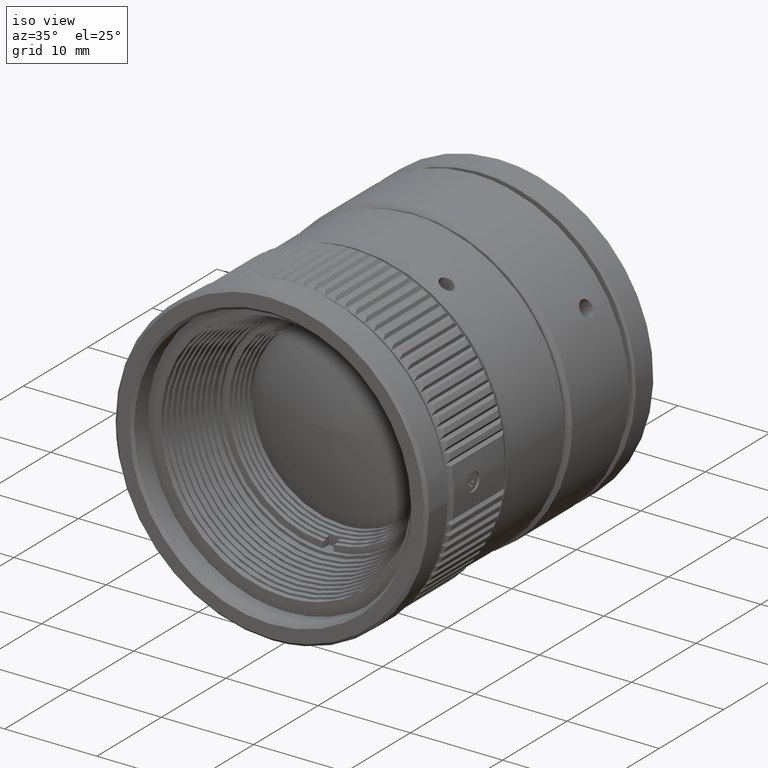
[diagram: clean part render]
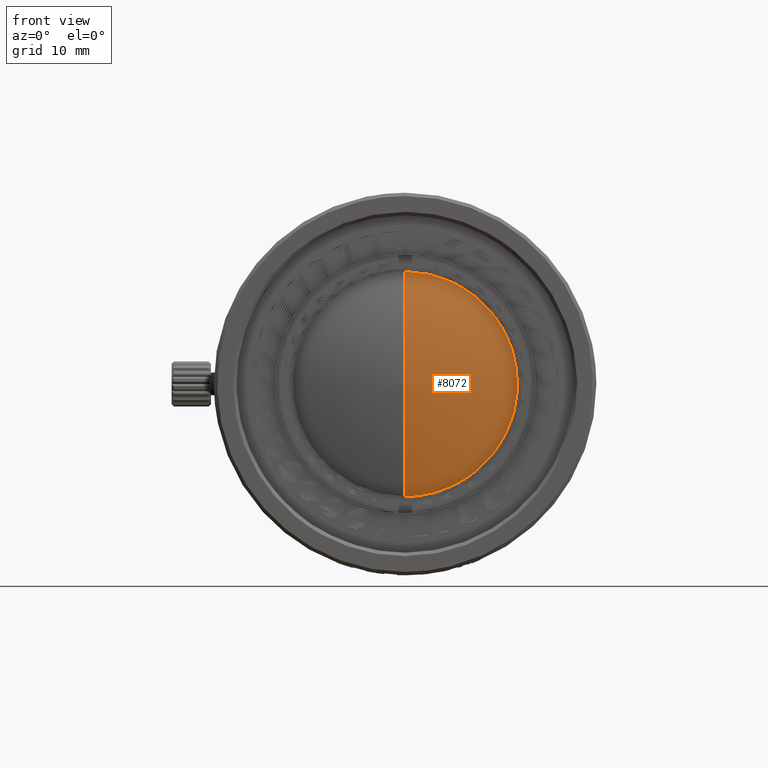
[diagram: tour spotlight — one face highlighted and labeled with its STEP entity id]
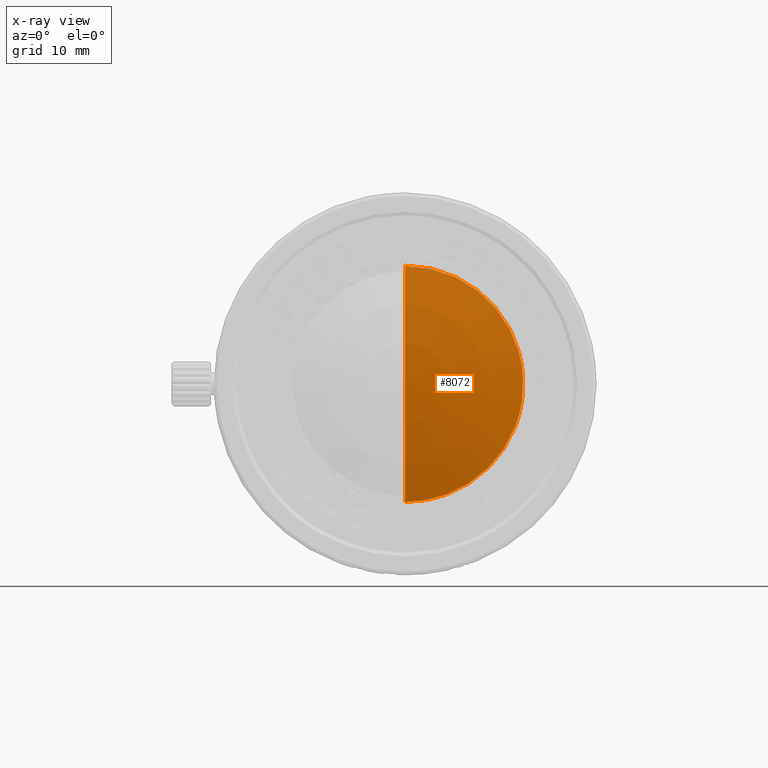
[diagram: x-ray of the same camera — body ghosted, this tour face saturated]
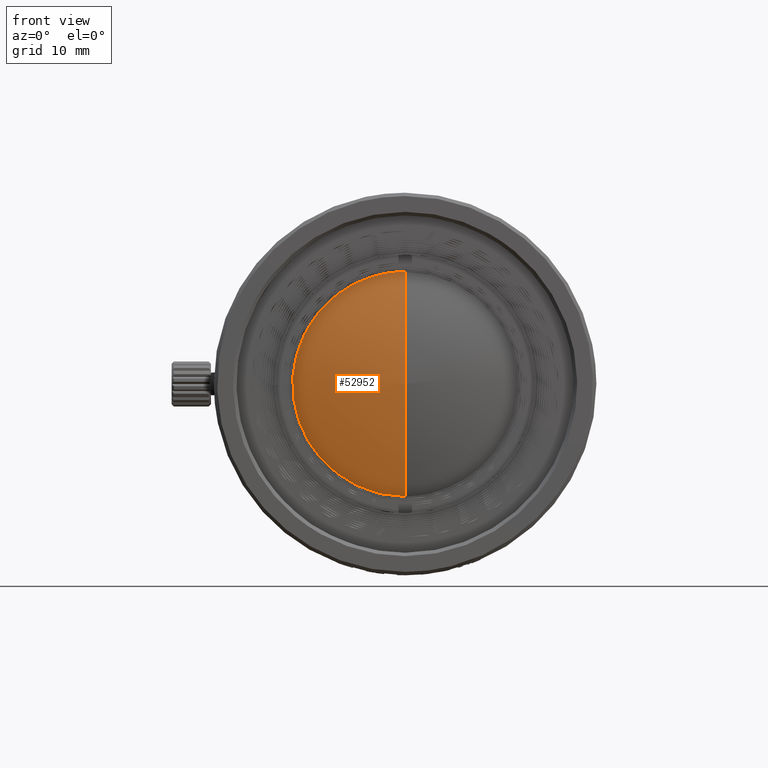
[diagram: tour spotlight — one face highlighted and labeled with its STEP entity id]
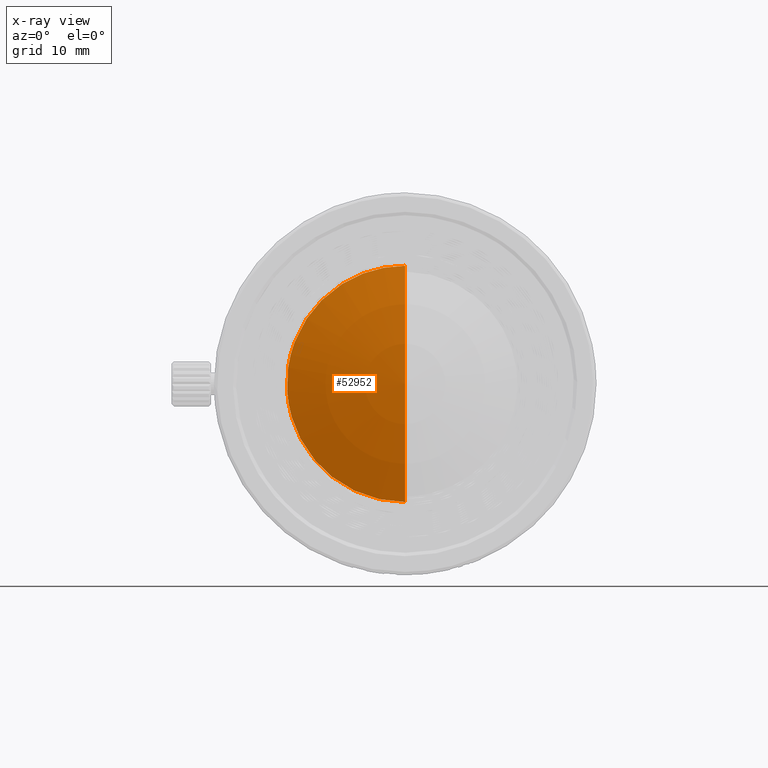
[diagram: x-ray of the same camera — body ghosted, this tour face saturated]
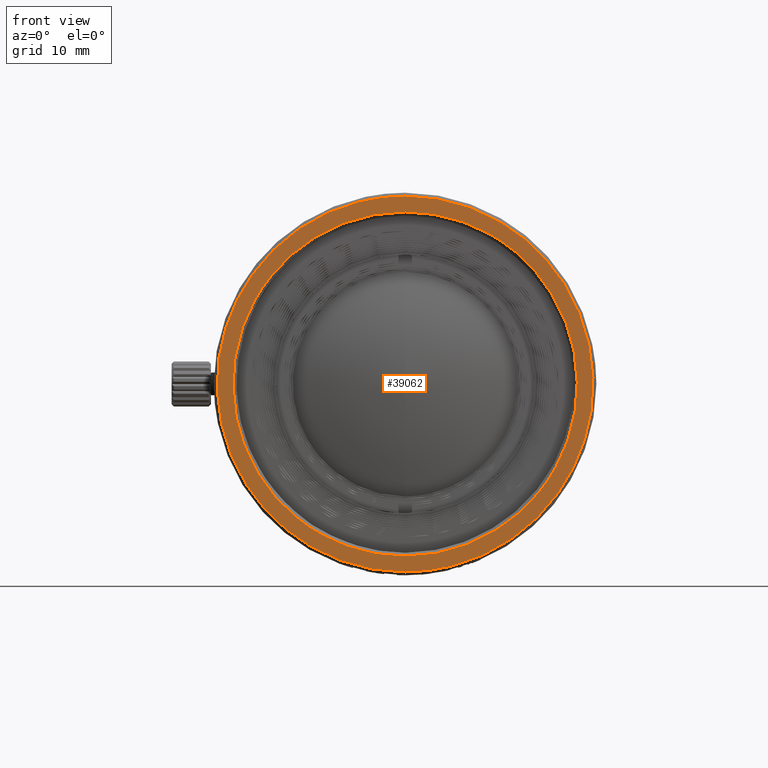
[diagram: tour spotlight — one face highlighted and labeled with its STEP entity id]
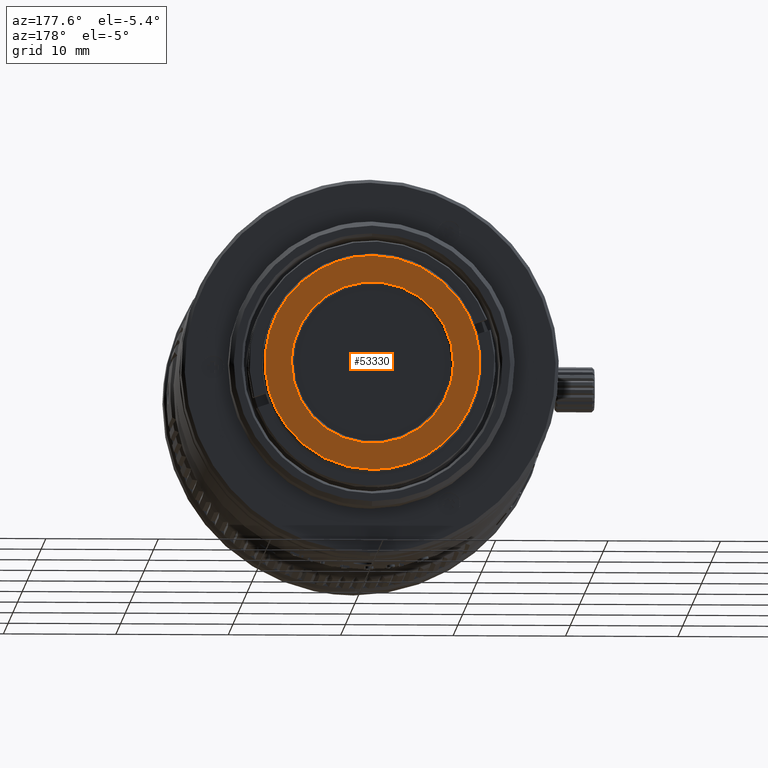
[diagram: tour spotlight — one face highlighted and labeled with its STEP entity id]
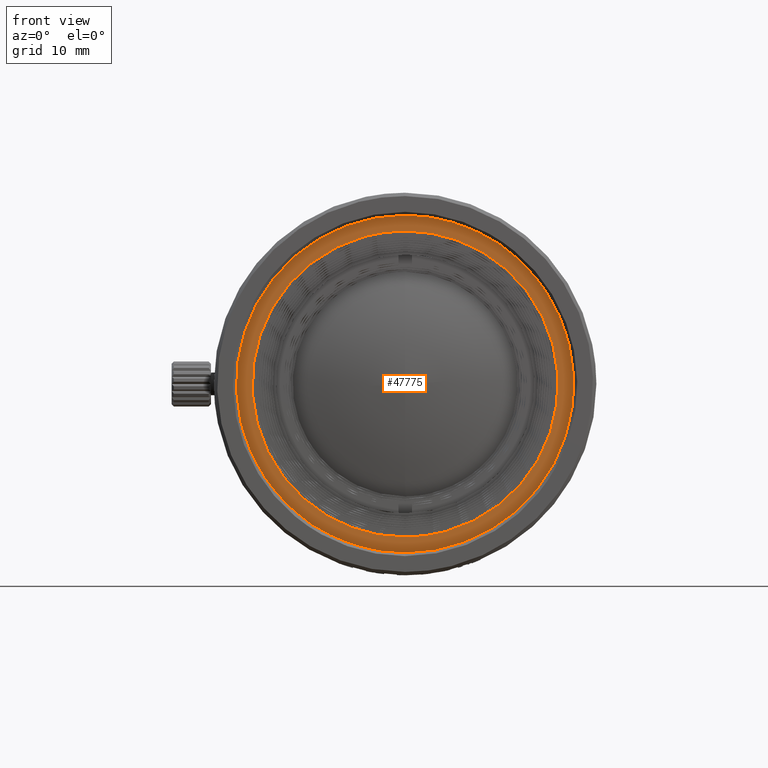
[diagram: tour spotlight — one face highlighted and labeled with its STEP entity id]
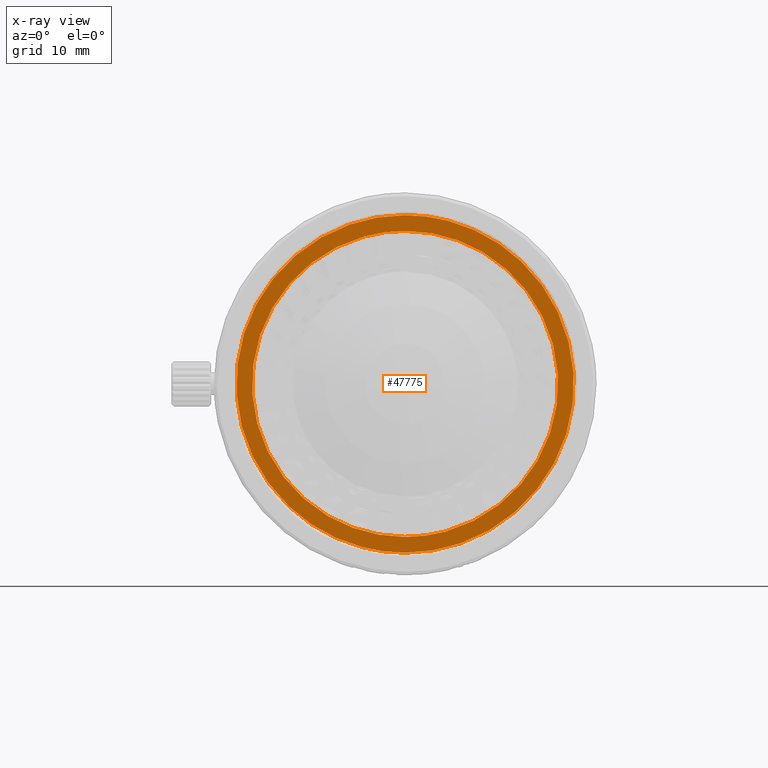
[diagram: x-ray of the same camera — body ghosted, this tour face saturated]
A machine part: a face-by-face anatomy tour. The part has 1306 B-rep faces; the first image is the clean iso view, then the 5 largest visible faces are spotlighted one at a time (largest first), each with its STEP entity span.

Face 1 — front view, entity #8072. An x-ray twin of the same camera follows (body ghosted, this face saturated) — the face is partly hidden behind the body. In plain terms, the highlighted spherical surface has radius 30.403 mm.
Definition (entity closure, byte-faithful):
#652 = CARTESIAN_POINT ( 'NONE',  ( 1.374446785945534932, -1.464734521831433822, 10.49999999999999822 ) ) ;
#881 = CARTESIAN_POINT ( 'NONE',  ( 2.143131898507855478E-16, -3.335429865530001425, -1.786799811341937438 ) ) ;
#4721 = CARTESIAN_POINT ( 'NONE',  ( -1.139929916806712043E-31, -3.335429865530004978, 1.739413008399170036E-16 ) ) ;
#7822 = CARTESIAN_POINT ( 'NONE',  ( 2.748352785772423701, -1.464734521831434488, -10.22671310501732123 ) ) ;
#8072 = ADVANCED_FACE ( 'NONE', ( #16826 ), #37222, .T. ) ;
#8742 = CARTESIAN_POINT ( 'NONE',  ( 0.000000000000000000, -3.335429865529996984, 1.786799811342030253 ) ) ;
#11922 = CARTESIAN_POINT ( 'NONE',  ( 8.396501845180884160, -1.464734521831434044, -6.452740559736620085 ) ) ;
#12138 = CARTESIAN_POINT ( 'NONE',  ( 6.429395695523600208E-16, -1.464734521831434044, -10.50000000000000000 ) ) ;
#12909 = CARTESIAN_POINT ( 'NONE',  ( 5.287999293894445785, -1.464734521831433822, 9.174757077719707610 ) ) ;
#13432 = CARTESIAN_POINT ( 'NONE',  ( 9.174757077719700504, -1.464734521831434266, -5.287999293894456443 ) ) ;
#15747 = CARTESIAN_POINT ( 'NONE',  ( 9.174757077719712939, -1.464734521831434266, 5.287999293894438679 ) ) ;
#16826 = FACE_OUTER_BOUND ( 'NONE', #20115, .T. ) ;
#17092 = CARTESIAN_POINT ( 'NONE',  ( 0.000000000000000000, 27.06757013446999949, 0.000000000000000000 ) ) ;
#17536 = CARTESIAN_POINT ( 'NONE',  ( 8.396501845180893042, -1.464734521831433822, 6.452740559736600545 ) ) ;
#17755 = CARTESIAN_POINT ( 'NONE',  ( 8.572527594031437691E-16, -2.550698849979284422, -7.091770225452966869 ) ) ;
#20115 = EDGE_LOOP ( 'NONE', ( #36961, #23636, #21041 ) ) ;
#20488 = CARTESIAN_POINT ( 'NONE',  ( -0.000000000000000000, -2.550698849979267990, 7.091770225453046805 ) ) ;
#21041 = ORIENTED_EDGE ( 'NONE', *, *, #33297, .T. ) ;
#21279 = CARTESIAN_POINT ( 'NONE',  ( 0.000000000000000000, -2.081824875385047680, 8.823141907804124884 ) ) ;
#21599 = CARTESIAN_POINT ( 'NONE',  ( 2.748352785772444573, -1.464734521831434044, 10.22671310501731234 ) ) ;
#23636 = ORIENTED_EDGE ( 'NONE', *, *, #33065, .F. ) ;
#24434 = CARTESIAN_POINT ( 'NONE',  ( 1.374446785945513172, -1.464734521831433822, -10.50000000000000178 ) ) ;
#24812 = CARTESIAN_POINT ( 'NONE',  ( -1.139929916806712043E-31, -3.335429865530004978, 1.739413008399170036E-16 ) ) ;
#25160 = CARTESIAN_POINT ( 'NONE',  ( -1.139929916806712043E-31, -3.335429865530004978, 1.739413008399170036E-16 ) ) ;
#25625 = CARTESIAN_POINT ( 'NONE',  ( 6.429395695523600208E-16, -1.464734521831434044, -10.50000000000000000 ) ) ;
#25667 = CARTESIAN_POINT ( 'NONE',  ( 10.50000000000000178, -1.464734521831434044, 1.374446785945524940 ) ) ;
#28227 = CARTESIAN_POINT ( 'NONE',  ( 6.452740559736608539, -1.464734521831434044, 8.396501845180889489 ) ) ;
#29418 = CARTESIAN_POINT ( 'NONE',  ( -6.429395695523600208E-16, -1.464734521831434044, 10.50000000000000000 ) ) ;
#29751 = CARTESIAN_POINT ( 'NONE',  ( 10.22671310501731945, -1.464734521831434488, 2.748352785772432583 ) ) ;
#33065 = EDGE_CURVE ( 'NONE', #53370, #35491, #33337, .T. ) ;
#33297 = EDGE_CURVE ( 'NONE', #53370, #35597, #37862, .T. ) ;
#33337 = B_SPLINE_CURVE_WITH_KNOTS ( 'NONE', 3,
 ( #36671, #652, #21599, #12909, #28227, #17536, #15747, #29751, #25667, #41981, #49142, #13432, #11922, #40996, #45056, #7822, #24434, #34091 ),
 .UNSPECIFIED., .F., .F.,
 ( 4, 2, 2, 2, 2, 2, 2, 2, 4 ),
 ( 0.000000000000000000, 0.1249999999999999167, 0.2499999999999998057, 0.3749999999999998335, 0.4999999999999998890, 0.6249999999999998890, 0.7499999999999998890, 0.8750000000000000000, 1.000000000000000000 ),
 .UNSPECIFIED. ) ;
#33660 = DIRECTION ( 'NONE',  ( 0.000000000000000000, -1.000000000000000000, 0.000000000000000000 ) ) ;
#34055 = CARTESIAN_POINT ( 'NONE',  ( 4.286263797015717859E-16, -3.177506385078959550, -3.573570888122963307 ) ) ;
#34091 = CARTESIAN_POINT ( 'NONE',  ( 6.429395695523600208E-16, -1.464734521831434044, -10.50000000000000000 ) ) ;
#34404 = AXIS2_PLACEMENT_3D ( 'NONE', #17092, #33660, #50227 ) ;
#34737 = CARTESIAN_POINT ( 'NONE',  ( -6.429395695523600208E-16, -1.464734521831434044, 10.50000000000000000 ) ) ;
#35491 = VERTEX_POINT ( 'NONE', #12138 ) ;
#35597 = VERTEX_POINT ( 'NONE', #25160 ) ;
#36671 = CARTESIAN_POINT ( 'NONE',  ( -6.429395695523600208E-16, -1.464734521831434044, 10.50000000000000000 ) ) ;
#36961 = ORIENTED_EDGE ( 'NONE', *, *, #41098, .T. ) ;
#37222 = SPHERICAL_SURFACE ( 'NONE', #34404, 30.40299999999999869 ) ;
#37862 = B_SPLINE_CURVE_WITH_KNOTS ( 'NONE', 3,
 ( #29418, #21279, #20488, #45987, #8742, #24812 ),
 .UNSPECIFIED., .F., .F.,
 ( 4, 2, 4 ),
 ( 0.000000000000000000, 0.5000000000000000000, 1.000000000000000000 ),
 .UNSPECIFIED. ) ;
#40996 = CARTESIAN_POINT ( 'NONE',  ( 6.452740559736592552, -1.464734521831434044, -8.396501845180905477 ) ) ;
#41098 = EDGE_CURVE ( 'NONE', #35597, #35491, #42910, .T. ) ;
#41981 = CARTESIAN_POINT ( 'NONE',  ( 10.50000000000000000, -1.464734521831434266, -1.374446785945546035 ) ) ;
#42910 = B_SPLINE_CURVE_WITH_KNOTS ( 'NONE', 3,
 ( #4721, #881, #34055, #17755, #51154, #25625 ),
 .UNSPECIFIED., .F., .F.,
 ( 4, 2, 4 ),
 ( 0.000000000000000000, 0.5000000000000000000, 1.000000000000000000 ),
 .UNSPECIFIED. ) ;
#45056 = CARTESIAN_POINT ( 'NONE',  ( 5.287999293894429798, -1.464734521831434044, -9.174757077719718268 ) ) ;
#45987 = CARTESIAN_POINT ( 'NONE',  ( -0.000000000000000000, -3.177506385078948448, 3.573570888123050793 ) ) ;
#49142 = CARTESIAN_POINT ( 'NONE',  ( 10.22671310501731057, -1.464734521831434044, -2.748352785772453455 ) ) ;
#50227 = DIRECTION ( 'NONE',  ( 0.000000000000000000, 0.000000000000000000, 1.000000000000000000 ) ) ;
#51154 = CARTESIAN_POINT ( 'NONE',  ( 1.071565949253930377E-15, -2.081824875385070328, -8.823141907804057382 ) ) ;
#53370 = VERTEX_POINT ( 'NONE', #34737 ) ;

Face 2 — front view, entity #52952. An x-ray twin of the same camera follows (body ghosted, this face saturated) — the face is partly hidden behind the body. In plain terms, the highlighted spherical surface has radius 30.403 mm.
Definition (entity closure, byte-faithful):
#881 = CARTESIAN_POINT ( 'NONE',  ( 2.143131898507855478E-16, -3.335429865530001425, -1.786799811341937438 ) ) ;
#2630 = ORIENTED_EDGE ( 'NONE', *, *, #33297, .F. ) ;
#4721 = CARTESIAN_POINT ( 'NONE',  ( -1.139929916806712043E-31, -3.335429865530004978, 1.739413008399170036E-16 ) ) ;
#7202 = DIRECTION ( 'NONE',  ( 0.000000000000000000, 0.000000000000000000, 1.000000000000000000 ) ) ;
#7734 = CARTESIAN_POINT ( 'NONE',  ( 0.000000000000000000, 27.06757013446999949, 0.000000000000000000 ) ) ;
#8742 = CARTESIAN_POINT ( 'NONE',  ( 0.000000000000000000, -3.335429865529996984, 1.786799811342030253 ) ) ;
#10265 = CARTESIAN_POINT ( 'NONE',  ( -6.429395695523600208E-16, -1.464734521831434044, 10.50000000000000000 ) ) ;
#10543 = CARTESIAN_POINT ( 'NONE',  ( -10.22671310501732478, -1.464734521831434266, -2.748352785772410822 ) ) ;
#10815 = CARTESIAN_POINT ( 'NONE',  ( -8.396501845180869950, -1.464734521831433822, 6.452740559736640513 ) ) ;
#12138 = CARTESIAN_POINT ( 'NONE',  ( 6.429395695523600208E-16, -1.464734521831434044, -10.50000000000000000 ) ) ;
#13496 = ORIENTED_EDGE ( 'NONE', *, *, #34381, .F. ) ;
#13821 = CARTESIAN_POINT ( 'NONE',  ( -5.287999293894464437, -1.464734521831434044, -9.174757077719700504 ) ) ;
#14364 = CARTESIAN_POINT ( 'NONE',  ( -2.748352785772462781, -1.464734521831434266, -10.22671310501731234 ) ) ;
#17755 = CARTESIAN_POINT ( 'NONE',  ( 8.572527594031437691E-16, -2.550698849979284422, -7.091770225452966869 ) ) ;
#17920 = CARTESIAN_POINT ( 'NONE',  ( -8.396501845180907253, -1.464734521831433822, -6.452740559736585446 ) ) ;
#17955 = EDGE_LOOP ( 'NONE', ( #2630, #13496, #38330 ) ) ;
#18729 = CARTESIAN_POINT ( 'NONE',  ( -9.174757077719723597, -1.464734521831434044, -5.287999293894418251 ) ) ;
#20488 = CARTESIAN_POINT ( 'NONE',  ( -0.000000000000000000, -2.550698849979267990, 7.091770225453046805 ) ) ;
#21279 = CARTESIAN_POINT ( 'NONE',  ( 0.000000000000000000, -2.081824875385047680, 8.823141907804124884 ) ) ;
#22797 = CARTESIAN_POINT ( 'NONE',  ( -1.374446785945557359, -1.464734521831434044, -10.49999999999999822 ) ) ;
#23803 = DIRECTION ( 'NONE',  ( 0.000000000000000000, -1.000000000000000000, 0.000000000000000000 ) ) ;
#24812 = CARTESIAN_POINT ( 'NONE',  ( -1.139929916806712043E-31, -3.335429865530004978, 1.739413008399170036E-16 ) ) ;
#25160 = CARTESIAN_POINT ( 'NONE',  ( -1.139929916806712043E-31, -3.335429865530004978, 1.739413008399170036E-16 ) ) ;
#25190 = AXIS2_PLACEMENT_3D ( 'NONE', #7734, #23803, #7202 ) ;
#25625 = CARTESIAN_POINT ( 'NONE',  ( 6.429395695523600208E-16, -1.464734521831434044, -10.50000000000000000 ) ) ;
#28612 = B_SPLINE_CURVE_WITH_KNOTS ( 'NONE', 3,
 ( #31223, #22797, #14364, #13821, #51334, #17920, #18729, #10543, #34484, #47492, #31499, #48040, #10815, #38835, #47228, #51060, #43431, #10265 ),
 .UNSPECIFIED., .F., .F.,
 ( 4, 2, 2, 2, 2, 2, 2, 2, 4 ),
 ( 0.000000000000000000, 0.1249999999999998890, 0.2499999999999997780, 0.3749999999999997780, 0.4999999999999997780, 0.6249999999999998890, 0.7500000000000000000, 0.8750000000000000000, 1.000000000000000000 ),
 .UNSPECIFIED. ) ;
#29418 = CARTESIAN_POINT ( 'NONE',  ( -6.429395695523600208E-16, -1.464734521831434044, 10.50000000000000000 ) ) ;
#31223 = CARTESIAN_POINT ( 'NONE',  ( 6.429395695523600208E-16, -1.464734521831434044, -10.50000000000000000 ) ) ;
#31499 = CARTESIAN_POINT ( 'NONE',  ( -10.22671310501730169, -1.464734521831434044, 2.748352785772477880 ) ) ;
#33297 = EDGE_CURVE ( 'NONE', #53370, #35597, #37862, .T. ) ;
#34055 = CARTESIAN_POINT ( 'NONE',  ( 4.286263797015717859E-16, -3.177506385078959550, -3.573570888122963307 ) ) ;
#34381 = EDGE_CURVE ( 'NONE', #35491, #53370, #28612, .T. ) ;
#34484 = CARTESIAN_POINT ( 'NONE',  ( -10.50000000000000533, -1.464734521831434044, -1.374446785945500515 ) ) ;
#34737 = CARTESIAN_POINT ( 'NONE',  ( -6.429395695523600208E-16, -1.464734521831434044, 10.50000000000000000 ) ) ;
#35491 = VERTEX_POINT ( 'NONE', #12138 ) ;
#35597 = VERTEX_POINT ( 'NONE', #25160 ) ;
#37123 = SPHERICAL_SURFACE ( 'NONE', #25190, 30.40299999999999869 ) ;
#37862 = B_SPLINE_CURVE_WITH_KNOTS ( 'NONE', 3,
 ( #29418, #21279, #20488, #45987, #8742, #24812 ),
 .UNSPECIFIED., .F., .F.,
 ( 4, 2, 4 ),
 ( 0.000000000000000000, 0.5000000000000000000, 1.000000000000000000 ),
 .UNSPECIFIED. ) ;
#38330 = ORIENTED_EDGE ( 'NONE', *, *, #41098, .F. ) ;
#38835 = CARTESIAN_POINT ( 'NONE',  ( -6.452740559736570347, -1.464734521831434488, 8.396501845180921464 ) ) ;
#41098 = EDGE_CURVE ( 'NONE', #35597, #35491, #42910, .T. ) ;
#42910 = B_SPLINE_CURVE_WITH_KNOTS ( 'NONE', 3,
 ( #4721, #881, #34055, #17755, #51154, #25625 ),
 .UNSPECIFIED., .F., .F.,
 ( 4, 2, 4 ),
 ( 0.000000000000000000, 0.5000000000000000000, 1.000000000000000000 ),
 .UNSPECIFIED. ) ;
#43431 = CARTESIAN_POINT ( 'NONE',  ( -1.374446785945491634, -1.464734521831434266, 10.50000000000000888 ) ) ;
#45987 = CARTESIAN_POINT ( 'NONE',  ( -0.000000000000000000, -3.177506385078948448, 3.573570888123050793 ) ) ;
#47228 = CARTESIAN_POINT ( 'NONE',  ( -5.287999293894411146, -1.464734521831434266, 9.174757077719728926 ) ) ;
#47492 = CARTESIAN_POINT ( 'NONE',  ( -10.49999999999999822, -1.464734521831434266, 1.374446785945573124 ) ) ;
#48040 = CARTESIAN_POINT ( 'NONE',  ( -9.174757077719686293, -1.464734521831434044, 5.287999293894480424 ) ) ;
#51060 = CARTESIAN_POINT ( 'NONE',  ( -2.748352785772402385, -1.464734521831434044, 10.22671310501732478 ) ) ;
#51154 = CARTESIAN_POINT ( 'NONE',  ( 1.071565949253930377E-15, -2.081824875385070328, -8.823141907804057382 ) ) ;
#51245 = FACE_OUTER_BOUND ( 'NONE', #17955, .T. ) ;
#51334 = CARTESIAN_POINT ( 'NONE',  ( -6.452740559736629855, -1.464734521831434266, -8.396501845180878831 ) ) ;
#52952 = ADVANCED_FACE ( 'NONE', ( #51245 ), #37123, .T. ) ;
#53370 = VERTEX_POINT ( 'NONE', #34737 ) ;

Face 3 — front view, entity #39062. In plain terms, the highlighted planar face has unit normal (-0, 1, 0).
Definition (entity closure, byte-faithful):
#15 = CARTESIAN_POINT ( 'NONE',  ( 9.402567098117204480, -13.10342986552999456, -12.23490565875176728 ) ) ;
#548 = CARTESIAN_POINT ( 'NONE',  ( 13.36893498716871065, -13.10342986553000166, 7.705372270176799709 ) ) ;
#952 = CARTESIAN_POINT ( 'NONE',  ( -12.23490565875189162, -13.10342986553000344, 9.402567098117263100 ) ) ;
#1964 = EDGE_CURVE ( 'NONE', #14526, #38692, #34004, .T. ) ;
#3024 = DIRECTION ( 'NONE',  ( 1.000000000000000000, 0.000000000000000000, 0.000000000000000000 ) ) ;
#3338 = CARTESIAN_POINT ( 'NONE',  ( 12.58155785403871896, -13.10342986552999811, -11.03580506559146279 ) ) ;
#3566 = CARTESIAN_POINT ( 'NONE',  ( -7.400624027040458408, -13.10342986553000877, 15.01050816896774442 ) ) ;
#3609 = CARTESIAN_POINT ( 'NONE',  ( 4.330018239210080111, -13.10342986552999811, -16.16587558805171909 ) ) ;
#3833 = CARTESIAN_POINT ( 'NONE',  ( -12.58155785403882554, -13.10342986552999811, -11.03580506559140950 ) ) ;
#3877 = CARTESIAN_POINT ( 'NONE',  ( 7.400624027040461073, -13.10342986553001055, 15.01050816896772133 ) ) ;
#4130 = CARTESIAN_POINT ( 'NONE',  ( -5.888794046216658801E-14, -13.10342986552999989, 15.30000371412129923 ) ) ;
#4391 = CARTESIAN_POINT ( 'NONE',  ( 16.16587558805164804, -13.10342986553000344, 4.330018239210079223 ) ) ;
#4532 = B_SPLINE_CURVE_WITH_KNOTS ( 'NONE', 3,
 ( #42013, #21633, #38216, #16040, #21376, #952, #50698, #20125, #36704, #53274, #18361, #30586, #5567, #35466, #5830, #51232, #22432, #30319 ),
 .UNSPECIFIED., .F., .F.,
 ( 4, 2, 2, 2, 2, 2, 2, 2, 4 ),
 ( 0.000000000000000000, 0.1250000000000000000, 0.2500000000000000000, 0.3750000000000000000, 0.5000000000000000000, 0.6250000000000000000, 0.7500000000000000000, 0.8750000000000000000, 1.000000000000000000 ),
 .UNSPECIFIED. ) ;
#4659 = CARTESIAN_POINT ( 'NONE',  ( 7.705372270176662042, -13.10342986553000522, 13.36893498716882966 ) ) ;
#5567 = CARTESIAN_POINT ( 'NONE',  ( -12.23490565875183300, -13.10342986552999811, -9.402567098117277311 ) ) ;
#5830 = CARTESIAN_POINT ( 'NONE',  ( -7.705372270176754412, -13.10342986552999811, -13.36893498716877637 ) ) ;
#5938 = EDGE_LOOP ( 'NONE', ( #16501, #44526 ) ) ;
#6356 = VERTEX_POINT ( 'NONE', #29957 ) ;
#7071 = FACE_OUTER_BOUND ( 'NONE', #10303, .T. ) ;
#7338 = CARTESIAN_POINT ( 'NONE',  ( -11.03580506559136687, -13.10342986553000522, 12.58155785403876692 ) ) ;
#7383 = CARTESIAN_POINT ( 'NONE',  ( 10.18682798382941179, -13.10342986553000877, 13.27829533894035663 ) ) ;
#7599 = CARTESIAN_POINT ( 'NONE',  ( -16.16587558805167291, -13.10342986553000699, 4.330018239210152942 ) ) ;
#7914 = CARTESIAN_POINT ( 'NONE',  ( 5.381000680800729796, -13.10342986553000699, 15.84706354986554722 ) ) ;
#8174 = CARTESIAN_POINT ( 'NONE',  ( 5.381000680800701375, -13.10342986553000344, -15.84706354986565380 ) ) ;
#8966 = CARTESIAN_POINT ( 'NONE',  ( 2.002765802840743792, -13.10342986553000166, 15.30000371412134008 ) ) ;
#9253 = EDGE_CURVE ( 'NONE', #38692, #14526, #4532, .T. ) ;
#10303 = EDGE_LOOP ( 'NONE', ( #23203, #15758 ) ) ;
#10869 = CARTESIAN_POINT ( 'NONE',  ( -16.69999747421422853, -13.10342986553000344, 1.093012278749161181 ) ) ;
#11435 = CARTESIAN_POINT ( 'NONE',  ( 17.38002217548999795, -13.10342986552999989, 17.36800000000000210 ) ) ;
#11478 = CARTESIAN_POINT ( 'NONE',  ( 13.27829533894038860, -13.10342986553000522, 10.18682798382937627 ) ) ;
#11699 = CARTESIAN_POINT ( 'NONE',  ( -7.400624027040551667, -13.10342986552999989, -15.01050816896780660 ) ) ;
#11747 = CARTESIAN_POINT ( 'NONE',  ( 15.01050816896774442, -13.10342986553000344, 7.400624027040424657 ) ) ;
#12282 = CARTESIAN_POINT ( 'NONE',  ( 14.49278551173629737, -13.10342986553000699, 8.369214992522410412 ) ) ;
#14086 = EDGE_CURVE ( 'NONE', #6356, #40879, #14940, .T. ) ;
#14526 = VERTEX_POINT ( 'NONE', #24146 ) ;
#14940 = B_SPLINE_CURVE_WITH_KNOTS ( 'NONE', 3,
 ( #27456, #31550, #19867, #20143, #32377, #11699, #48090, #19596, #19328, #3833, #52750, #15522, #32104, #48919, #44831, #48646, #28276, #10869, #15236, #7599, #39961, #24214, #40779, #31817, #28010, #7338, #23939, #44028, #3566, #36722, #40505, #35891, #53291, #52472 ),
 .UNSPECIFIED., .F., .F.,
 ( 4, 2, 2, 2, 2, 2, 2, 2, 2, 2, 2, 2, 2, 2, 2, 2, 4 ),
 ( 0.000000000000000000, 0.06249999999999993061, 0.1249999999999998612, 0.1874999999999998335, 0.2499999999999998335, 0.3124999999999998335, 0.3749999999999997780, 0.4374999999999997780, 0.4999999999999997780, 0.5624999999999997780, 0.6249999999999998890, 0.6874999999999998890, 0.7499999999999998890, 0.8125000000000000000, 0.8750000000000000000, 0.9375000000000000000, 1.000000000000000000 ),
 .UNSPECIFIED. ) ;
#15236 = CARTESIAN_POINT ( 'NONE',  ( -16.59234782290919696, -13.10342986553000522, 2.185997530615822804 ) ) ;
#15522 = CARTESIAN_POINT ( 'NONE',  ( -14.49278551173637908, -13.10342986553000344, -8.369214992522485019 ) ) ;
#15758 = ORIENTED_EDGE ( 'NONE', *, *, #41354, .F. ) ;
#16040 = CARTESIAN_POINT ( 'NONE',  ( -7.705372270176829907, -13.10342986552999989, 13.36893498716879947 ) ) ;
#16368 = CARTESIAN_POINT ( 'NONE',  ( 14.49278551173628493, -13.10342986553000166, -8.369214992522543639 ) ) ;
#16501 = ORIENTED_EDGE ( 'NONE', *, *, #9253, .F. ) ;
#17165 = CARTESIAN_POINT ( 'NONE',  ( 4.004743602860290963, -13.10342986553000166, 14.90178557047793539 ) ) ;
#17441 = CARTESIAN_POINT ( 'NONE',  ( 12.23490565875173530, -13.10342986553000166, 9.402567098117314615 ) ) ;
#18361 = CARTESIAN_POINT ( 'NONE',  ( -14.90178557047793717, -13.10342986552999811, -4.004743602860396656 ) ) ;
#19328 = CARTESIAN_POINT ( 'NONE',  ( -11.03580506559145391, -13.10342986553000166, -12.58155785403879001 ) ) ;
#19596 = CARTESIAN_POINT ( 'NONE',  ( -10.18682798382950416, -13.10342986553000166, -13.27829533894043479 ) ) ;
#19867 = CARTESIAN_POINT ( 'NONE',  ( -2.185997530615880535, -13.10342986552999989, -16.59234782290922183 ) ) ;
#20125 = CARTESIAN_POINT ( 'NONE',  ( -14.90178557047796382, -13.10342986553000166, 4.004743602860370899 ) ) ;
#20143 = CARTESIAN_POINT ( 'NONE',  ( -4.330018239210208897, -13.10342986552999633, -16.16587558805170488 ) ) ;
#20448 = CARTESIAN_POINT ( 'NONE',  ( 12.58155785403874205, -13.10342986553000522, 11.03580506559132957 ) ) ;
#20718 = CARTESIAN_POINT ( 'NONE',  ( 13.27829533894036906, -13.10342986553000166, -10.18682798382950594 ) ) ;
#20978 = CARTESIAN_POINT ( 'NONE',  ( 11.03580506559133845, -13.10342986553000344, -12.58155785403883797 ) ) ;
#20980 = CARTESIAN_POINT ( 'NONE',  ( 9.402567098117177835, -13.10342986553000166, 12.23490565875186320 ) ) ;
#21376 = CARTESIAN_POINT ( 'NONE',  ( -9.402567098117351918, -13.10342986553000166, 12.23490565875182590 ) ) ;
#21633 = CARTESIAN_POINT ( 'NONE',  ( -2.002765802840929421, -13.10342986552999989, 15.30000371412133298 ) ) ;
#22432 = CARTESIAN_POINT ( 'NONE',  ( -2.002765802840832610, -13.10342986552999989, -15.30000371412127436 ) ) ;
#23203 = ORIENTED_EDGE ( 'NONE', *, *, #14086, .F. ) ;
#23670 = FACE_BOUND ( 'NONE', #5938, .T. ) ;
#23939 = CARTESIAN_POINT ( 'NONE',  ( -10.18682798382940646, -13.10342986553000877, 13.27829533894040459 ) ) ;
#24146 = CARTESIAN_POINT ( 'NONE',  ( -6.138622053889209190E-14, -13.10342986552999989, -15.30000371412124949 ) ) ;
#24214 = CARTESIAN_POINT ( 'NONE',  ( -15.01050816896776752, -13.10342986553000522, 7.400624027040495712 ) ) ;
#24255 = CARTESIAN_POINT ( 'NONE',  ( 16.59234782290914367, -13.10342986553000522, 2.185997530615748641 ) ) ;
#24525 = CARTESIAN_POINT ( 'NONE',  ( 11.03580506559136509, -13.10342986553000699, 12.58155785403870830 ) ) ;
#24776 = CARTESIAN_POINT ( 'NONE',  ( 15.30000371412123883, -13.10342986552999633, -2.002765802840781095 ) ) ;
#25040 = CARTESIAN_POINT ( 'NONE',  ( 16.59234782290914367, -13.10342986553000344, -2.185997530615884088 ) ) ;
#25696 = AXIS2_PLACEMENT_3D ( 'NONE', #11435, #40241, #3024 ) ;
#27456 = CARTESIAN_POINT ( 'NONE',  ( -2.754861803610909772E-14, -13.10342986552999989, -16.69999747421424985 ) ) ;
#28010 = CARTESIAN_POINT ( 'NONE',  ( -12.58155785403874916, -13.10342986553000522, 11.03580506559139174 ) ) ;
#28061 = CARTESIAN_POINT ( 'NONE',  ( 16.69999747421417879, -13.10342986553000522, 1.093012278749088129 ) ) ;
#28276 = CARTESIAN_POINT ( 'NONE',  ( -16.69999747421423564, -13.10342986553000344, -1.093012278749150301 ) ) ;
#28857 = CARTESIAN_POINT ( 'NONE',  ( 7.400624027040431763, -13.10342986552999989, -15.01050816896783680 ) ) ;
#28859 = CARTESIAN_POINT ( 'NONE',  ( 4.004743602860322937, -13.10342986552999811, -14.90178557047785368 ) ) ;
#29384 = CARTESIAN_POINT ( 'NONE',  ( 15.30000371412123528, -13.10342986553000344, 2.002765802840889453 ) ) ;
#29911 = CARTESIAN_POINT ( 'NONE',  ( 7.705372270176686023, -13.10342986552999811, -13.36893498716874262 ) ) ;
#29957 = CARTESIAN_POINT ( 'NONE',  ( -2.754861803610909772E-14, -13.10342986552999989, -16.69999747421424985 ) ) ;
#30319 = CARTESIAN_POINT ( 'NONE',  ( -6.138622053889209190E-14, -13.10342986552999989, -15.30000371412124949 ) ) ;
#30377 = CARTESIAN_POINT ( 'NONE',  ( -3.143198014710234664E-14, -13.10342986552999989, 16.69999747421414682 ) ) ;
#30586 = CARTESIAN_POINT ( 'NONE',  ( -13.36893498716881012, -13.10342986552999989, -7.705372270176757965 ) ) ;
#31550 = CARTESIAN_POINT ( 'NONE',  ( -1.093012278749220245, -13.10342986553000344, -16.69999747421425695 ) ) ;
#31817 = CARTESIAN_POINT ( 'NONE',  ( -13.27829533894040637, -13.10342986553000699, 10.18682798382942245 ) ) ;
#31887 = CARTESIAN_POINT ( 'NONE',  ( -5.888794046216658801E-14, -13.10342986552999989, 15.30000371412129923 ) ) ;
#32104 = CARTESIAN_POINT ( 'NONE',  ( -15.01050816896782436, -13.10342986553000344, -7.400624027040493935 ) ) ;
#32377 = CARTESIAN_POINT ( 'NONE',  ( -5.381000680800817726, -13.10342986553000166, -15.84706354986564136 ) ) ;
#32422 = CARTESIAN_POINT ( 'NONE',  ( 8.369214992522445939, -13.10342986553000699, 14.49278551173627072 ) ) ;
#32677 = CARTESIAN_POINT ( 'NONE',  ( 15.84706354986556853, -13.10342986553000522, -5.381000680800826608 ) ) ;
#32942 = CARTESIAN_POINT ( 'NONE',  ( 8.369214992522415741, -13.10342986553000344, -14.49278551173639151 ) ) ;
#34004 = B_SPLINE_CURVE_WITH_KNOTS ( 'NONE', 3,
 ( #49244, #37297, #28859, #29911, #15, #45675, #41092, #38087, #24776, #29384, #37037, #548, #17441, #20980, #4659, #17165, #8966, #4130 ),
 .UNSPECIFIED., .F., .F.,
 ( 4, 2, 2, 2, 2, 2, 2, 2, 4 ),
 ( 0.000000000000000000, 0.1249999999999999445, 0.2499999999999998890, 0.3749999999999998335, 0.4999999999999997780, 0.6249999999999997780, 0.7499999999999998890, 0.8749999999999998890, 1.000000000000000000 ),
 .UNSPECIFIED. ) ;
#35466 = CARTESIAN_POINT ( 'NONE',  ( -9.402567098117266653, -13.10342986552999989, -12.23490565875181524 ) ) ;
#35891 = CARTESIAN_POINT ( 'NONE',  ( -2.185997530615777062, -13.10342986553001055, 16.59234782290911880 ) ) ;
#36704 = CARTESIAN_POINT ( 'NONE',  ( -15.30000371412136673, -13.10342986553000166, 2.002765802840821951 ) ) ;
#36722 = CARTESIAN_POINT ( 'NONE',  ( -5.381000680800724467, -13.10342986553001055, 15.84706354986557209 ) ) ;
#36766 = CARTESIAN_POINT ( 'NONE',  ( 10.18682798382937982, -13.10342986552999989, -13.27829533894048275 ) ) ;
#37035 = CARTESIAN_POINT ( 'NONE',  ( 15.84706354986557386, -13.10342986553000699, 5.381000680800690716 ) ) ;
#37037 = CARTESIAN_POINT ( 'NONE',  ( 14.90178557047782881, -13.10342986553000522, 4.004743602860435736 ) ) ;
#37297 = CARTESIAN_POINT ( 'NONE',  ( 2.002765802840775322, -13.10342986552999811, -15.30000371412126903 ) ) ;
#38087 = CARTESIAN_POINT ( 'NONE',  ( 14.90178557047783059, -13.10342986552999456, -4.004743602860328267 ) ) ;
#38216 = CARTESIAN_POINT ( 'NONE',  ( -4.004743602860470375, -13.10342986553000344, 14.90178557047792118 ) ) ;
#38315 = B_SPLINE_CURVE_WITH_KNOTS ( 'NONE', 3,
 ( #41349, #48693, #48970, #40556, #7914, #3877, #32422, #7383, #24525, #20448, #11478, #12282, #11747, #37035, #4391, #24255, #28061, #53337, #25040, #40824, #32677, #53601, #16368, #20718, #3338, #20978, #36766, #32942, #28857, #8174, #3609, #44616, #45413, #45673 ),
 .UNSPECIFIED., .F., .F.,
 ( 4, 2, 2, 2, 2, 2, 2, 2, 2, 2, 2, 2, 2, 2, 2, 2, 4 ),
 ( 0.000000000000000000, 0.06250000000000001388, 0.1250000000000000278, 0.1875000000000000555, 0.2500000000000000555, 0.3125000000000000555, 0.3750000000000001110, 0.4375000000000001110, 0.5000000000000001110, 0.5625000000000001110, 0.6250000000000001110, 0.6875000000000001110, 0.7500000000000002220, 0.8125000000000002220, 0.8750000000000002220, 0.9375000000000001110, 1.000000000000000000 ),
 .UNSPECIFIED. ) ;
#38692 = VERTEX_POINT ( 'NONE', #31887 ) ;
#39062 = ADVANCED_FACE ( 'NONE', ( #7071, #23670 ), #52199, .F. ) ;
#39961 = CARTESIAN_POINT ( 'NONE',  ( -15.84706354986561294, -13.10342986553000699, 5.381000680800762659 ) ) ;
#40241 = DIRECTION ( 'NONE',  ( -0.000000000000000000, 1.000000000000000000, 0.000000000000000000 ) ) ;
#40505 = CARTESIAN_POINT ( 'NONE',  ( -4.330018239210106756, -13.10342986553000877, 16.16587558805162672 ) ) ;
#40556 = CARTESIAN_POINT ( 'NONE',  ( 4.330018239210112974, -13.10342986553000699, 16.16587558805160540 ) ) ;
#40779 = CARTESIAN_POINT ( 'NONE',  ( -14.49278551173632223, -13.10342986553000344, 8.369214992522465479 ) ) ;
#40824 = CARTESIAN_POINT ( 'NONE',  ( 16.16587558805162672, -13.10342986553000699, -4.330018239210213338 ) ) ;
#40879 = VERTEX_POINT ( 'NONE', #30377 ) ;
#41092 = CARTESIAN_POINT ( 'NONE',  ( 13.36893498716872664, -13.10342986552999456, -7.705372270176694016 ) ) ;
#41349 = CARTESIAN_POINT ( 'NONE',  ( -3.143198014710234664E-14, -13.10342986552999989, 16.69999747421414682 ) ) ;
#41354 = EDGE_CURVE ( 'NONE', #40879, #6356, #38315, .T. ) ;
#42013 = CARTESIAN_POINT ( 'NONE',  ( -5.888794046216658801E-14, -13.10342986552999989, 15.30000371412129923 ) ) ;
#44028 = CARTESIAN_POINT ( 'NONE',  ( -8.369214992522433505, -13.10342986553000877, 14.49278551173630625 ) ) ;
#44526 = ORIENTED_EDGE ( 'NONE', *, *, #1964, .F. ) ;
#44616 = CARTESIAN_POINT ( 'NONE',  ( 2.185997530615754414, -13.10342986552999989, -16.59234782290922894 ) ) ;
#44831 = CARTESIAN_POINT ( 'NONE',  ( -16.16587558805170488, -13.10342986553000522, -4.330018239210142283 ) ) ;
#45413 = CARTESIAN_POINT ( 'NONE',  ( 1.093012278749088795, -13.10342986552999633, -16.69999747421425340 ) ) ;
#45673 = CARTESIAN_POINT ( 'NONE',  ( -2.754861803610909772E-14, -13.10342986552999989, -16.69999747421424985 ) ) ;
#45675 = CARTESIAN_POINT ( 'NONE',  ( 12.23490565875174596, -13.10342986552999811, -9.402567098117218691 ) ) ;
#48090 = CARTESIAN_POINT ( 'NONE',  ( -8.369214992522543639, -13.10342986553000166, -14.49278551173635066 ) ) ;
#48646 = CARTESIAN_POINT ( 'NONE',  ( -16.59234782290921117, -13.10342986553000344, -2.185997530615810813 ) ) ;
#48693 = CARTESIAN_POINT ( 'NONE',  ( 1.093012278749126542, -13.10342986553000877, 16.69999747421415037 ) ) ;
#48919 = CARTESIAN_POINT ( 'NONE',  ( -15.84706354986565024, -13.10342986553000344, -5.381000680800759106 ) ) ;
#48970 = CARTESIAN_POINT ( 'NONE',  ( 2.185997530615785056, -13.10342986553000699, 16.59234782290911880 ) ) ;
#49244 = CARTESIAN_POINT ( 'NONE',  ( -6.138622053889209190E-14, -13.10342986552999989, -15.30000371412124949 ) ) ;
#50698 = CARTESIAN_POINT ( 'NONE',  ( -13.36893498716886519, -13.10342986553000166, 7.705372270176741978 ) ) ;
#51232 = CARTESIAN_POINT ( 'NONE',  ( -4.004743602860384222, -13.10342986553000166, -14.90178557047787322 ) ) ;
#52199 = PLANE ( 'NONE',  #25696 ) ;
#52472 = CARTESIAN_POINT ( 'NONE',  ( -3.143198014710234664E-14, -13.10342986552999989, 16.69999747421414682 ) ) ;
#52750 = CARTESIAN_POINT ( 'NONE',  ( -13.27829533894047209, -13.10342986553000344, -10.18682798382944732 ) ) ;
#53274 = CARTESIAN_POINT ( 'NONE',  ( -15.30000371412135785, -13.10342986553000166, -2.002765802840850817 ) ) ;
#53291 = CARTESIAN_POINT ( 'NONE',  ( -1.093012278749115218, -13.10342986553000344, 16.69999747421415393 ) ) ;
#53337 = CARTESIAN_POINT ( 'NONE',  ( 16.69999747421417169, -13.10342986552999989, -1.093012278749223354 ) ) ;
#53601 = CARTESIAN_POINT ( 'NONE',  ( 15.01050816896773199, -13.10342986553000166, -7.400624027040556108 ) ) ;

Face 4 — auxiliary view, entity #53330. In plain terms, the highlighted planar face has unit normal (0, -1, 0).
Definition (entity closure, byte-faithful):
#931 = CARTESIAN_POINT ( 'NONE',  ( 4.809560926149353932, 27.44234638863857256, -8.344659425136793374 ) ) ;
#1829 = CARTESIAN_POINT ( 'NONE',  ( -0.9424779018420249566, 27.44234624815675261, 7.200000807985753148 ) ) ;
#2933 = CARTESIAN_POINT ( 'NONE',  ( -6.291262702157598419, 27.44234624815674195, 3.626057065587448669 ) ) ;
#2973 = CARTESIAN_POINT ( 'NONE',  ( -1.628619289919764953E-14, 27.44234661124569996, 9.549999332049189604 ) ) ;
#3602 = CARTESIAN_POINT ( 'NONE',  ( 5.757601911386275972, 27.44234624815675261, -4.424736880364360303 ) ) ;
#4123 = CARTESIAN_POINT ( 'NONE',  ( -7.012604058967913723, 27.44234624815675261, -1.884584978875324390 ) ) ;
#5295 = B_SPLINE_CURVE_WITH_KNOTS ( 'NONE', 3,
 ( #2973, #40184, #32327, #16011, #20355, #52974, #19819, #36394, #35840, #36934, #53508, #15745, #8610, #9133, #25741, #34163, #8345, #16808 ),
 .UNSPECIFIED., .F., .F.,
 ( 4, 2, 2, 2, 2, 2, 2, 2, 4 ),
 ( 0.000000000000000000, 0.1250000000000000000, 0.2500000000000000000, 0.3750000000000000000, 0.5000000000000000000, 0.6250000000000000000, 0.7500000000000000000, 0.8750000000000000000, 1.000000000000000000 ),
 .UNSPECIFIED. ) ;
#5392 = PLANE ( 'NONE',  #35580 ) ;
#6154 = CARTESIAN_POINT ( 'NONE',  ( 1.884584978875372130, 27.44234624815675261, 7.012604058967916387 ) ) ;
#6427 = CARTESIAN_POINT ( 'NONE',  ( 4.424736880364366520, 27.44234624815675261, 5.757601911386308835 ) ) ;
#6828 = CARTESIAN_POINT ( 'NONE',  ( 7.200000807985718509, 27.44234624815675261, -0.9424779018420174070 ) ) ;
#6883 = ORIENTED_EDGE ( 'NONE', *, *, #50649, .F. ) ;
#6972 = CARTESIAN_POINT ( 'NONE',  ( 7.200000807985730056, 27.44234651759115096, 2.225067173272644568E-14 ) ) ;
#7379 = CARTESIAN_POINT ( 'NONE',  ( 8.344659425136789821, 27.44234638863857256, 4.809560926149404558 ) ) ;
#7427 = VERTEX_POINT ( 'NONE', #13979 ) ;
#7644 = CARTESIAN_POINT ( 'NONE',  ( -4.424736880364399383, 27.44234624815674550, -5.757601911386254656 ) ) ;
#8170 = CARTESIAN_POINT ( 'NONE',  ( 8.344659425136802255, 27.44234638863857967, -4.809560926149343274 ) ) ;
#8345 = CARTESIAN_POINT ( 'NONE',  ( -1.250091989306356899, 27.44234638863857612, -9.549999332049146972 ) ) ;
#8610 = CARTESIAN_POINT ( 'NONE',  ( -7.636817810764477521, 27.44234638863857256, -5.868920765273452744 ) ) ;
#8818 = CARTESIAN_POINT ( 'NONE',  ( 2.499692120796392025, 27.44234638863858322, -9.301438411616530288 ) ) ;
#9133 = CARTESIAN_POINT ( 'NONE',  ( -5.868920765273428763, 27.44234638863858322, -7.636817810764489955 ) ) ;
#10226 = CARTESIAN_POINT ( 'NONE',  ( 0.9424779018420215149, 27.44234624815675261, 7.200000807985750484 ) ) ;
#11054 = CARTESIAN_POINT ( 'NONE',  ( 7.200000807985722062, 27.44234624815675616, 0.9424779018420295085 ) ) ;
#12274 = CARTESIAN_POINT ( 'NONE',  ( -1.884584978875407213, 27.44234624815674550, -7.012604058967867537 ) ) ;
#13812 = FACE_BOUND ( 'NONE', #14497, .T. ) ;
#13835 = ORIENTED_EDGE ( 'NONE', *, *, #47207, .F. ) ;
#13979 = CARTESIAN_POINT ( 'NONE',  ( 7.200000807985730056, 27.44234651759115096, 2.225067173272644568E-14 ) ) ;
#14497 = EDGE_LOOP ( 'NONE', ( #13835, #22811 ) ) ;
#14597 = CARTESIAN_POINT ( 'NONE',  ( -7.200000807985739826, 27.44234651759115096, 2.049676951495310030E-14 ) ) ;
#15277 = CARTESIAN_POINT ( 'NONE',  ( 6.291262702157573550, 27.44234624815674906, -3.626057065587417583 ) ) ;
#15745 = CARTESIAN_POINT ( 'NONE',  ( -8.344659425136809361, 27.44234638863857256, -4.809560926149382354 ) ) ;
#15836 = CARTESIAN_POINT ( 'NONE',  ( 1.250091989306341800, 27.44234638863857256, 9.549999332049191381 ) ) ;
#16011 = CARTESIAN_POINT ( 'NONE',  ( -4.809560926149407223, 27.44234638863856901, 8.344659425136825348 ) ) ;
#16626 = CARTESIAN_POINT ( 'NONE',  ( 9.301438411616532065, 27.44234638863857256, 2.499692120796439987 ) ) ;
#16808 = CARTESIAN_POINT ( 'NONE',  ( -1.813469696037424900E-14, 27.44234661124569996, -9.549999332049139866 ) ) ;
#16887 = CARTESIAN_POINT ( 'NONE',  ( 1.884584978875341932, 27.44234624815675261, -7.012604058967882636 ) ) ;
#17548 = CARTESIAN_POINT ( 'NONE',  ( 5.868920765273427875, 27.44234638863857967, -7.636817810764459757 ) ) ;
#19112 = CARTESIAN_POINT ( 'NONE',  ( -1.813469696037424900E-14, 27.44234661124569996, -9.549999332049139866 ) ) ;
#19819 = CARTESIAN_POINT ( 'NONE',  ( -8.344659425136844888, 27.44234638863857256, 4.809560926149369031 ) ) ;
#19913 = CARTESIAN_POINT ( 'NONE',  ( 9.549999332049146972, 27.44234638863857256, 1.250091989306410412 ) ) ;
#20183 = CARTESIAN_POINT ( 'NONE',  ( 3.626057065587396711, 27.44234624815674550, -6.291262702157577991 ) ) ;
#20355 = CARTESIAN_POINT ( 'NONE',  ( -5.868920765273477613, 27.44234638863857256, 7.636817810764493508 ) ) ;
#20444 = CARTESIAN_POINT ( 'NONE',  ( 4.809560926149339721, 27.44234638863856901, 8.344659425136846664 ) ) ;
#21233 = CARTESIAN_POINT ( 'NONE',  ( 4.424736880364344316, 27.44234624815674550, -5.757601911386283966 ) ) ;
#21611 = CARTESIAN_POINT ( 'NONE',  ( -1.813469696037424900E-14, 27.44234661124569996, -9.549999332049139866 ) ) ;
#22749 = EDGE_CURVE ( 'NONE', #43187, #7427, #37013, .T. ) ;
#22811 = ORIENTED_EDGE ( 'NONE', *, *, #22749, .F. ) ;
#22962 = EDGE_LOOP ( 'NONE', ( #45928, #6883 ) ) ;
#22997 = B_SPLINE_CURVE_WITH_KNOTS ( 'NONE', 3,
 ( #44067, #6828, #52513, #15277, #3602, #21233, #20183, #16887, #28321, #25034, #12274, #48966, #7644, #28851, #41867, #4123, #44876, #45407 ),
 .UNSPECIFIED., .F., .F.,
 ( 4, 2, 2, 2, 2, 2, 2, 2, 4 ),
 ( 0.000000000000000000, 0.1250000000000000278, 0.2500000000000000000, 0.3749999999999999445, 0.4999999999999999445, 0.6249999999999998890, 0.7499999999999998890, 0.8750000000000000000, 1.000000000000000000 ),
 .UNSPECIFIED. ) ;
#23024 = CARTESIAN_POINT ( 'NONE',  ( 7.012604058967888854, 27.44234624815675261, 1.884584978875381900 ) ) ;
#24769 = CARTESIAN_POINT ( 'NONE',  ( 9.301438411616533841, 27.44234638863857256, -2.499692120796377814 ) ) ;
#24955 = CARTESIAN_POINT ( 'NONE',  ( -7.200000807985739826, 27.44234651759115096, 2.049676951495310030E-14 ) ) ;
#25034 = CARTESIAN_POINT ( 'NONE',  ( -0.9424779018420578192, 27.44234624815674550, -7.200000807985705187 ) ) ;
#25741 = CARTESIAN_POINT ( 'NONE',  ( -4.809560926149357485, 27.44234638863857256, -8.344659425136809361 ) ) ;
#26553 = CARTESIAN_POINT ( 'NONE',  ( -4.424736880364372738, 27.44234624815675261, 5.757601911386317717 ) ) ;
#27097 = CARTESIAN_POINT ( 'NONE',  ( -7.200000807985738938, 27.44234624815674550, 0.9424779018420443855 ) ) ;
#28321 = CARTESIAN_POINT ( 'NONE',  ( 0.9424779018419900956, 27.44234624815675261, -7.200000807985714069 ) ) ;
#28323 = CARTESIAN_POINT ( 'NONE',  ( 5.868920765273413664, 27.44234638863857256, 7.636817810764514824 ) ) ;
#28851 = CARTESIAN_POINT ( 'NONE',  ( -5.757601911386323934, 27.44234624815675261, -4.424736880364321223 ) ) ;
#31182 = CARTESIAN_POINT ( 'NONE',  ( -5.757601911386302618, 27.44234624815675261, 4.424736880364391389 ) ) ;
#31372 = CARTESIAN_POINT ( 'NONE',  ( -1.628619289919764953E-14, 27.44234661124569996, 9.549999332049189604 ) ) ;
#31727 = CARTESIAN_POINT ( 'NONE',  ( -3.626057065587429573, 27.44234624815675261, 6.291262702157612630 ) ) ;
#32327 = CARTESIAN_POINT ( 'NONE',  ( -2.499692120796443096, 27.44234638863857256, 9.301438411616569368 ) ) ;
#32419 = CARTESIAN_POINT ( 'NONE',  ( 2.499692120796374262, 27.44234638863857256, 9.301438411616581803 ) ) ;
#32674 = CARTESIAN_POINT ( 'NONE',  ( 9.549999332049148748, 27.44234638863857256, -1.250091989306348017 ) ) ;
#34163 = CARTESIAN_POINT ( 'NONE',  ( -2.499692120796388917, 27.44234638863858322, -9.301438411616539170 ) ) ;
#34490 = EDGE_CURVE ( 'NONE', #45868, #38737, #5295, .T. ) ;
#35580 = AXIS2_PLACEMENT_3D ( 'NONE', #38566, #47478, #43417 ) ;
#35840 = CARTESIAN_POINT ( 'NONE',  ( -9.549999332049186052, 27.44234638863857256, 1.250091989306369111 ) ) ;
#36394 = CARTESIAN_POINT ( 'NONE',  ( -9.301438411616574697, 27.44234638863857256, 2.499692120796400463 ) ) ;
#36760 = CARTESIAN_POINT ( 'NONE',  ( 7.636817810764473080, 27.44234638863857612, -5.868920765273414553 ) ) ;
#36934 = CARTESIAN_POINT ( 'NONE',  ( -9.549999332049178946, 27.44234638863857256, -1.250091989306389761 ) ) ;
#37013 = B_SPLINE_CURVE_WITH_KNOTS ( 'NONE', 3,
 ( #14597, #27097, #39866, #2933, #31182, #26553, #31727, #43116, #1829, #10226, #6154, #39323, #6427, #47723, #48267, #23024, #11054, #6972 ),
 .UNSPECIFIED., .F., .F.,
 ( 4, 2, 2, 2, 2, 2, 2, 2, 4 ),
 ( 0.000000000000000000, 0.1250000000000000000, 0.2500000000000000000, 0.3750000000000000000, 0.5000000000000000000, 0.6250000000000000000, 0.7500000000000000000, 0.8750000000000000000, 1.000000000000000000 ),
 .UNSPECIFIED. ) ;
#38197 = CARTESIAN_POINT ( 'NONE',  ( 1.250091989306362450, 27.44234638863857612, -9.549999332049141643 ) ) ;
#38566 = CARTESIAN_POINT ( 'NONE',  ( -6.226936362444999595, 27.44234705645999739, 12.59568312016000036 ) ) ;
#38737 = VERTEX_POINT ( 'NONE', #19112 ) ;
#39323 = CARTESIAN_POINT ( 'NONE',  ( 3.626057065587425132, 27.44234624815675261, 6.291262702157606412 ) ) ;
#39866 = CARTESIAN_POINT ( 'NONE',  ( -7.012604058967905729, 27.44234624815674906, 1.884584978875395889 ) ) ;
#40184 = CARTESIAN_POINT ( 'NONE',  ( -1.250091989306417295, 27.44234638863857612, 9.549999332049180722 ) ) ;
#41867 = CARTESIAN_POINT ( 'NONE',  ( -6.291262702157611741, 27.44234624815674906, -3.626057065587380279 ) ) ;
#43116 = CARTESIAN_POINT ( 'NONE',  ( -1.884584978875375016, 27.44234624815675261, 7.012604058967919940 ) ) ;
#43187 = VERTEX_POINT ( 'NONE', #24955 ) ;
#43417 = DIRECTION ( 'NONE',  ( 0.000000000000000000, 0.000000000000000000, -1.000000000000000000 ) ) ;
#44067 = CARTESIAN_POINT ( 'NONE',  ( 7.200000807985730056, 27.44234651759115096, 2.225067173272644568E-14 ) ) ;
#44876 = CARTESIAN_POINT ( 'NONE',  ( -7.200000807985745155, 27.44234624815675261, -0.9424779018419717769 ) ) ;
#45407 = CARTESIAN_POINT ( 'NONE',  ( -7.200000807985739826, 27.44234651759115096, 2.049676951495310030E-14 ) ) ;
#45868 = VERTEX_POINT ( 'NONE', #31372 ) ;
#45928 = ORIENTED_EDGE ( 'NONE', *, *, #34490, .F. ) ;
#46950 = FACE_OUTER_BOUND ( 'NONE', #22962, .T. ) ;
#47207 = EDGE_CURVE ( 'NONE', #7427, #43187, #22997, .T. ) ;
#47478 = DIRECTION ( 'NONE',  ( 0.000000000000000000, -1.000000000000000000, 0.000000000000000000 ) ) ;
#47723 = CARTESIAN_POINT ( 'NONE',  ( 5.757601911386292848, 27.44234624815675261, 4.424736880364378067 ) ) ;
#48267 = CARTESIAN_POINT ( 'NONE',  ( 6.291262702157585984, 27.44234624815675261, 3.626057065587437567 ) ) ;
#48530 = B_SPLINE_CURVE_WITH_KNOTS ( 'NONE', 3,
 ( #21611, #38197, #8818, #931, #17548, #36760, #8170, #24769, #32674, #19913, #16626, #7379, #48967, #28323, #20444, #32419, #15836, #49237 ),
 .UNSPECIFIED., .F., .F.,
 ( 4, 2, 2, 2, 2, 2, 2, 2, 4 ),
 ( 0.000000000000000000, 0.1250000000000000000, 0.2500000000000000000, 0.3750000000000000000, 0.5000000000000000000, 0.6250000000000000000, 0.7500000000000000000, 0.8750000000000000000, 1.000000000000000000 ),
 .UNSPECIFIED. ) ;
#48966 = CARTESIAN_POINT ( 'NONE',  ( -3.626057065587458883, 27.44234624815675261, -6.291262702157556674 ) ) ;
#48967 = CARTESIAN_POINT ( 'NONE',  ( 7.636817810764458869, 27.44234638863856901, 5.868920765273474061 ) ) ;
#49237 = CARTESIAN_POINT ( 'NONE',  ( -1.628619289919764953E-14, 27.44234661124569996, 9.549999332049189604 ) ) ;
#50649 = EDGE_CURVE ( 'NONE', #38737, #45868, #48530, .T. ) ;
#52513 = CARTESIAN_POINT ( 'NONE',  ( 7.012604058967883525, 27.44234624815675261, -1.884584978875366135 ) ) ;
#52974 = CARTESIAN_POINT ( 'NONE',  ( -7.636817810764519265, 27.44234638863857256, 5.868920765273444751 ) ) ;
#53330 = ADVANCED_FACE ( 'NONE', ( #46950, #13812 ), #5392, .F. ) ;
#53508 = CARTESIAN_POINT ( 'NONE',  ( -9.301438411616556934, 27.44234638863857256, -2.499692120796420003 ) ) ;

Face 5 — front view, entity #47775. An x-ray twin of the same camera follows (body ghosted, this face saturated) — the face is partly hidden behind the body. In plain terms, the highlighted planar face has unit normal (0, -1, 0).
Definition (entity closure, byte-faithful):
#200 = CARTESIAN_POINT ( 'NONE',  ( -4.379805618326601646, -10.70342986553000131, -12.90631996336965948 ) ) ;
#1381 = CARTESIAN_POINT ( 'NONE',  ( 1.688587589885870101E-15, -10.70342986552943998, -13.59999999999999964 ) ) ;
#1413 = CARTESIAN_POINT ( 'NONE',  ( 13.51285714281849160, -10.70342986553000131, 1.777764848781317353 ) ) ;
#2556 = CARTESIAN_POINT ( 'NONE',  ( -14.23492960074363367, -10.70342986553000308, -4.830634510726313557 ) ) ;
#3891 = CARTESIAN_POINT ( 'NONE',  ( 3.892158939181743271, -10.70342986553000131, 14.51963201008075188 ) ) ;
#4459 = CARTESIAN_POINT ( 'NONE',  ( 6.029183742014923020, -10.70342986553000131, 12.22320332093036832 ) ) ;
#4846 = CARTESIAN_POINT ( 'NONE',  ( -6.029183742003803026, -10.70342986553000131, -12.22320332093734052 ) ) ;
#4979 = CARTESIAN_POINT ( 'NONE',  ( 11.80387095580870493, -10.70342986553000308, -6.813546999170537077 ) ) ;
#5195 = EDGE_CURVE ( 'NONE', #39926, #39715, #38276, .T. ) ;
#5798 = CARTESIAN_POINT ( 'NONE',  ( -11.92502895910283023, -10.70342986553000131, 9.152154655540522654 ) ) ;
#6055 = CARTESIAN_POINT ( 'NONE',  ( -6.649868460218249844, -10.70342986552999598, 13.48145637460146595 ) ) ;
#6144 = CARTESIAN_POINT ( 'NONE',  ( -1.110346431226934140E-15, -10.70342986552943998, 13.59999999999999964 ) ) ;
#6330 = CARTESIAN_POINT ( 'NONE',  ( -0.9847288876728020890, -10.70342986553000131, 15.00000000000000355 ) ) ;
#6598 = CARTESIAN_POINT ( 'NONE',  ( -13.48145637459496982, -10.70342986553000131, -6.649868460226381117 ) ) ;
#6822 = ORIENTED_EDGE ( 'NONE', *, *, #5195, .T. ) ;
#6852 = CARTESIAN_POINT ( 'NONE',  ( 6.649840830420515658, -10.70342986553000131, 13.48138967036740077 ) ) ;
#7044 = ORIENTED_EDGE ( 'NONE', *, *, #44632, .T. ) ;
#7129 = CARTESIAN_POINT ( 'NONE',  ( 4.830662140532180793, -10.70342986552999953, 14.23499630497120094 ) ) ;
#7232 = CARTESIAN_POINT ( 'NONE',  ( -1.110346431226934140E-15, -10.70342986552943998, 13.59999999999999964 ) ) ;
#7397 = CARTESIAN_POINT ( 'NONE',  ( 13.01905940996186395, -10.70342986553000486, -7.514952335068969980 ) ) ;
#7662 = CARTESIAN_POINT ( 'NONE',  ( 14.99996389992939250, -10.70342986553000131, -0.9845473655805657698 ) ) ;
#7928 = CARTESIAN_POINT ( 'NONE',  ( 9.910447125802617663, -10.70342986553000486, 11.30280736300136901 ) ) ;
#8100 = CARTESIAN_POINT ( 'NONE',  ( -12.90638666505143561, -10.70342986553000486, -4.379833247050188838 ) ) ;
#8623 = CARTESIAN_POINT ( 'NONE',  ( -6.813587109869335023, -10.70342986553000486, 11.80393098573360255 ) ) ;
#9805 = B_SPLINE_CURVE_WITH_KNOTS ( 'NONE', 3,
 ( #27799, #20201, #28611, #48983, #28075, #40839, #16384, #28341, #32955, #53351, #32435, #7397, #40572, #11759, #16121, #49521, #7662, #15299, #36779, #32692, #40302, #49256, #24271, #12028, #45163, #7928, #31884, #41103, #6852, #7129, #3891, #23457, #48422, #11211 ),
 .UNSPECIFIED., .F., .F.,
 ( 4, 2, 2, 2, 2, 2, 2, 2, 2, 2, 2, 2, 2, 2, 2, 2, 4 ),
 ( 0.000000000000000000, 0.06249999999999998612, 0.1249999999999999722, 0.1874999999999999445, 0.2499999999999999445, 0.3124999999999999445, 0.3749999999999998890, 0.4374999999999998890, 0.4999999999999998890, 0.5624999999999998890, 0.6249999999999998890, 0.6874999999999998890, 0.7499999999999997780, 0.8124999999999997780, 0.8749999999999998890, 0.9375000000000000000, 1.000000000000000000 ),
 .UNSPECIFIED. ) ;
#9827 = CARTESIAN_POINT ( 'NONE',  ( 13.60003609868595653, -10.70342986553000308, -0.8926220556492530100 ) ) ;
#10955 = CARTESIAN_POINT ( 'NONE',  ( -1.960550721292787291, -10.70342986553000131, -14.90392640201615215 ) ) ;
#11211 = CARTESIAN_POINT ( 'NONE',  ( 1.802887957806290204E-15, -10.70342986553067988, 15.00000000000000000 ) ) ;
#11759 = CARTESIAN_POINT ( 'NONE',  ( 14.23499630497203405, -10.70342986553000486, -4.830662140527957504 ) ) ;
#12028 = CARTESIAN_POINT ( 'NONE',  ( 11.92508899132471178, -10.70342986553000131, 9.152194767782782847 ) ) ;
#12084 = CARTESIAN_POINT ( 'NONE',  ( 3.528705995054871813, -10.70342986553000131, 13.16457329427351652 ) ) ;
#12731 = CARTESIAN_POINT ( 'NONE',  ( -10.24785685834581450, -10.70342986553000308, -8.985498641183252033 ) ) ;
#12994 = CARTESIAN_POINT ( 'NONE',  ( -8.297963338949900347, -10.70342986552999598, -10.81210249883044661 ) ) ;
#13652 = CARTESIAN_POINT ( 'NONE',  ( 1.777583257725812160, -10.70342986553000486, -13.51289327116130856 ) ) ;
#13778 = EDGE_CURVE ( 'NONE', #39715, #39926, #9805, .T. ) ;
#13919 = CARTESIAN_POINT ( 'NONE',  ( 6.029156113258844485, -10.70342986553000308, -12.22313661926175499 ) ) ;
#15299 = CARTESIAN_POINT ( 'NONE',  ( 15.00003610007060395, -10.70342986553000308, 0.9845473655805661028 ) ) ;
#16121 = CARTESIAN_POINT ( 'NONE',  ( 14.51966813704025405, -10.70342986553000131, -3.891977351489265935 ) ) ;
#16384 = CARTESIAN_POINT ( 'NONE',  ( 7.514912222822441201, -10.70342986552999953, -13.01899937773758076 ) ) ;
#16553 = CARTESIAN_POINT ( 'NONE',  ( -13.51278633269892104, -10.70342986553000308, 1.777750763775551412 ) ) ;
#16702 = DIRECTION ( 'NONE',  ( 0.000000000000000000, 0.000000000000000000, -1.000000000000000000 ) ) ;
#16824 = CARTESIAN_POINT ( 'NONE',  ( -13.16457329426898326, -10.70342986553000308, 3.528705995063149636 ) ) ;
#17090 = CARTESIAN_POINT ( 'NONE',  ( -6.813546999183299313, -10.70342986553000308, -11.80387095579879642 ) ) ;
#17619 = CARTESIAN_POINT ( 'NONE',  ( 1.688587589885870101E-15, -10.70342986552943998, -13.59999999999999964 ) ) ;
#18059 = CARTESIAN_POINT ( 'NONE',  ( -3.891991437033616830, -10.70342986552999953, 14.51973894987555447 ) ) ;
#18324 = CARTESIAN_POINT ( 'NONE',  ( -9.152154655534388894, -10.70342986553000308, -11.92502895910688210 ) ) ;
#18591 = CARTESIAN_POINT ( 'NONE',  ( -9.910396072588799399, -10.70342986552999953, 11.30275630979692991 ) ) ;
#18861 = CARTESIAN_POINT ( 'NONE',  ( -14.99996389992940315, -10.70342986553000308, 0.9845473655790246692 ) ) ;
#19133 = CARTESIAN_POINT ( 'NONE',  ( -4.830662140513319436, -10.70342986552999953, -14.23499630497680535 ) ) ;
#19681 = CARTESIAN_POINT ( 'NONE',  ( -0.9850991112121321169, -10.70342986552999776, -14.99999999999999645 ) ) ;
#20201 = CARTESIAN_POINT ( 'NONE',  ( 0.9847288876758520937, -10.70342986553000308, -15.00000000000000178 ) ) ;
#21052 = DIRECTION ( 'NONE',  ( 0.000000000000000000, -1.000000000000000000, 0.000000000000000000 ) ) ;
#21166 = CARTESIAN_POINT ( 'NONE',  ( -3.528705995051650390, -10.70342986552999953, -13.16457329427245604 ) ) ;
#21428 = CARTESIAN_POINT ( 'NONE',  ( -12.22313661925557327, -10.70342986553000308, -6.029156113280291329 ) ) ;
#21794 = B_SPLINE_CURVE_WITH_KNOTS ( 'NONE', 3,
 ( #40887, #36828, #53400, #12084, #41682, #4459, #28665, #46014, #41150, #25375, #41942, #22355, #42192, #43255, #38411, #1413, #26157, #9827, #42451, #46274, #42723, #51153, #4979, #34054, #33795, #38144, #50629, #51427, #13919, #29972, #25894, #13652, #46525, #29708 ),
 .UNSPECIFIED., .F., .F.,
 ( 4, 2, 2, 2, 2, 2, 2, 2, 2, 2, 2, 2, 2, 2, 2, 2, 4 ),
 ( 0.000000000000000000, 0.06250000000000000000, 0.1250000000000000000, 0.1875000000000000000, 0.2500000000000000000, 0.3125000000000000000, 0.3750000000000000000, 0.4375000000000000000, 0.5000000000000000000, 0.5625000000000000000, 0.6250000000000000000, 0.6875000000000000000, 0.7500000000000000000, 0.8125000000000000000, 0.8750000000000000000, 0.9375000000000000000, 1.000000000000000000 ),
 .UNSPECIFIED. ) ;
#22325 = EDGE_LOOP ( 'NONE', ( #7044, #50955 ) ) ;
#22355 = CARTESIAN_POINT ( 'NONE',  ( 11.80393098572107746, -10.70342986553000131, 6.813587109893100902 ) ) ;
#22394 = CARTESIAN_POINT ( 'NONE',  ( -14.51966813704025228, -10.70342986553000131, 3.891977351490884640 ) ) ;
#22486 = CARTESIAN_POINT ( 'NONE',  ( -0.8931737979097342794, -10.70342986553000308, 13.59999999999999964 ) ) ;
#22660 = CARTESIAN_POINT ( 'NONE',  ( -7.514912222824015053, -10.70342986552999953, 13.01899937773606375 ) ) ;
#22927 = CARTESIAN_POINT ( 'NONE',  ( -13.01899937774543403, -10.70342986553000131, -7.514912222808394660 ) ) ;
#23197 = CARTESIAN_POINT ( 'NONE',  ( -11.30275630981563317, -10.70342986553000308, -9.910396072576313387 ) ) ;
#23457 = CARTESIAN_POINT ( 'NONE',  ( 1.960550721302138921, -10.70342986552999953, 14.90392640201614682 ) ) ;
#23772 = CARTESIAN_POINT ( 'NONE',  ( 1.802887957806290204E-15, -10.70342986553067988, 15.00000000000000000 ) ) ;
#24271 = CARTESIAN_POINT ( 'NONE',  ( 13.01899937775164240, -10.70342986553000131, 7.514912222805319786 ) ) ;
#24562 = CARTESIAN_POINT ( 'NONE',  ( -1.224646799147351876E-15, -10.70342986553067988, -15.00000000000000000 ) ) ;
#24961 = CARTESIAN_POINT ( 'NONE',  ( -12.22320332092713357, -10.70342986553000131, 6.029183742025266746 ) ) ;
#25230 = CARTESIAN_POINT ( 'NONE',  ( -8.985498641171918877, -10.70342986553000486, 10.24785685835432325 ) ) ;
#25375 = CARTESIAN_POINT ( 'NONE',  ( 10.24785685833856874, -10.70342986553000131, 8.985498641190483582 ) ) ;
#25894 = CARTESIAN_POINT ( 'NONE',  ( 3.528873501112903099, -10.70342986553000308, -13.16446635580655666 ) ) ;
#26157 = CARTESIAN_POINT ( 'NONE',  ( 13.59996390131404809, -10.70342986553000308, 0.8926220556492528990 ) ) ;
#27000 = CARTESIAN_POINT ( 'NONE',  ( -14.51973894987208169, -10.70342986553000131, -3.891991437049468594 ) ) ;
#27269 = CARTESIAN_POINT ( 'NONE',  ( -13.48138967036333469, -10.70342986553000308, 6.649840830439379680 ) ) ;
#27541 = CARTESIAN_POINT ( 'NONE',  ( -15.00003610007059862, -10.70342986553000131, -0.9845473655790253353 ) ) ;
#27799 = CARTESIAN_POINT ( 'NONE',  ( -1.224646799147351876E-15, -10.70342986553067988, -15.00000000000000000 ) ) ;
#28075 = CARTESIAN_POINT ( 'NONE',  ( 4.830634510725873909, -10.70342986553000131, -14.23492960074236358 ) ) ;
#28341 = CARTESIAN_POINT ( 'NONE',  ( 9.152194767765612582, -10.70342986553000308, -11.92508899133877698 ) ) ;
#28611 = CARTESIAN_POINT ( 'NONE',  ( 1.960718223439693597, -10.70342986552999953, -14.90381946222407450 ) ) ;
#28665 = CARTESIAN_POINT ( 'NONE',  ( 6.813546999181886221, -10.70342986553000131, 11.80387095580013046 ) ) ;
#28786 = CARTESIAN_POINT ( 'NONE',  ( -13.51285714282131600, -10.70342986553000486, -1.777764848765986283 ) ) ;
#29304 = CARTESIAN_POINT ( 'NONE',  ( -10.81210249881223540, -10.70342986553000486, 8.297963338970973268 ) ) ;
#29567 = CARTESIAN_POINT ( 'NONE',  ( -8.985447589928286405, -10.70342986553000308, -10.24780580709085065 ) ) ;
#29708 = CARTESIAN_POINT ( 'NONE',  ( 1.688587589885870101E-15, -10.70342986552943998, -13.59999999999999964 ) ) ;
#29972 = CARTESIAN_POINT ( 'NONE',  ( 4.379833247071592162, -10.70342986553000308, -12.90638666504524679 ) ) ;
#30051 = VERTEX_POINT ( 'NONE', #1381 ) ;
#30813 = CARTESIAN_POINT ( 'NONE',  ( -11.30280736300759692, -10.70342986552999776, 9.910447125799464629 ) ) ;
#31635 = CARTESIAN_POINT ( 'NONE',  ( -7.514952335053718180, -10.70342986553000131, -13.01905940996947919 ) ) ;
#31884 = CARTESIAN_POINT ( 'NONE',  ( 9.152154655509386671, -10.70342986553000131, 11.92502895911946581 ) ) ;
#32435 = CARTESIAN_POINT ( 'NONE',  ( 11.92502895911448668, -10.70342986553000131, -9.152154655519085580 ) ) ;
#32692 = CARTESIAN_POINT ( 'NONE',  ( 14.51973894987292013, -10.70342986553000308, 3.891991437043666568 ) ) ;
#32888 = AXIS2_PLACEMENT_3D ( 'NONE', #46277, #21052, #16702 ) ;
#32955 = CARTESIAN_POINT ( 'NONE',  ( 9.910396072596638462, -10.70342986553000131, -11.30275630978912460 ) ) ;
#33657 = CARTESIAN_POINT ( 'NONE',  ( -0.8928035743564013416, -10.70342986553000131, -13.60000000000000320 ) ) ;
#33795 = CARTESIAN_POINT ( 'NONE',  ( 10.24780580709062328, -10.70342986553000308, -8.985447589931320422 ) ) ;
#34054 = CARTESIAN_POINT ( 'NONE',  ( 10.81210249882052565, -10.70342986553000308, -8.297963338962645707 ) ) ;
#34618 = CARTESIAN_POINT ( 'NONE',  ( -1.960718223450288011, -10.70342986553000308, 14.90381946222134957 ) ) ;
#34709 = CARTESIAN_POINT ( 'NONE',  ( -3.528873501122522072, -10.70342986553000308, 13.16446635580658331 ) ) ;
#34884 = CARTESIAN_POINT ( 'NONE',  ( -6.649840830439383232, -10.70342986553000308, -13.48138967036179459 ) ) ;
#35148 = CARTESIAN_POINT ( 'NONE',  ( -13.01905940997356836, -10.70342986553000131, 7.514952335047585308 ) ) ;
#35426 = CARTESIAN_POINT ( 'NONE',  ( -11.92508899133096989, -10.70342986553000131, -9.152194767779663565 ) ) ;
#35517 = VERTEX_POINT ( 'NONE', #7232 ) ;
#35704 = CARTESIAN_POINT ( 'NONE',  ( -3.892158939191117550, -10.70342986553000131, -14.51963201008075544 ) ) ;
#36779 = CARTESIAN_POINT ( 'NONE',  ( 14.90381946222398390, -10.70342986553000308, 1.960718223440137242 ) ) ;
#36828 = CARTESIAN_POINT ( 'NONE',  ( 0.8928035743479592057, -10.70342986553000308, 13.59999999999999964 ) ) ;
#37107 = FACE_OUTER_BOUND ( 'NONE', #40765, .T. ) ;
#37220 = CARTESIAN_POINT ( 'NONE',  ( -1.777750763787053101, -10.70342986553000308, -13.51278633269540741 ) ) ;
#38144 = CARTESIAN_POINT ( 'NONE',  ( 8.985498641183474078, -10.70342986553000308, -10.24785685834277693 ) ) ;
#38147 = FACE_BOUND ( 'NONE', #22325, .T. ) ;
#38270 = CARTESIAN_POINT ( 'NONE',  ( -11.80393098573359900, -10.70342986553000486, -6.813587109870744563 ) ) ;
#38276 = B_SPLINE_CURVE_WITH_KNOTS ( 'NONE', 3,
 ( #47356, #6330, #34618, #18059, #48171, #6055, #22660, #52283, #18591, #30813, #5798, #35148, #27269, #51725, #22394, #51195, #18861, #27541, #47627, #27000, #2556, #6598, #22927, #35426, #23197, #39769, #18324, #31635, #34884, #19133, #35704, #10955, #19681, #24562 ),
 .UNSPECIFIED., .F., .F.,
 ( 4, 2, 2, 2, 2, 2, 2, 2, 2, 2, 2, 2, 2, 2, 2, 2, 4 ),
 ( 0.000000000000000000, 0.06250000000000005551, 0.1250000000000001110, 0.1875000000000001665, 0.2500000000000002220, 0.3125000000000002776, 0.3750000000000002776, 0.4375000000000002776, 0.5000000000000002220, 0.5625000000000002220, 0.6250000000000003331, 0.6875000000000003331, 0.7500000000000003331, 0.8125000000000002220, 0.8750000000000002220, 0.9375000000000001110, 1.000000000000000000 ),
 .UNSPECIFIED. ) ;
#38411 = CARTESIAN_POINT ( 'NONE',  ( 13.16450248414937541, -10.70342986553000308, 3.528691910057384362 ) ) ;
#38530 = CARTESIAN_POINT ( 'NONE',  ( -6.029156113277620577, -10.70342986553000308, 12.22313661925610440 ) ) ;
#39585 = CARTESIAN_POINT ( 'NONE',  ( -4.379833247052883571, -10.70342986553000131, 12.90638666505090271 ) ) ;
#39715 = VERTEX_POINT ( 'NONE', #41470 ) ;
#39769 = CARTESIAN_POINT ( 'NONE',  ( -9.910447125780766697, -10.70342986552999953, -11.30280736302010602 ) ) ;
#39926 = VERTEX_POINT ( 'NONE', #23772 ) ;
#40302 = CARTESIAN_POINT ( 'NONE',  ( 14.23492960074630531, -10.70342986553000308, 4.830634510716113716 ) ) ;
#40572 = CARTESIAN_POINT ( 'NONE',  ( 13.48138967036656943, -10.70342986553000308, -6.649840830424741611 ) ) ;
#40765 = EDGE_LOOP ( 'NONE', ( #52586, #6822 ) ) ;
#40839 = CARTESIAN_POINT ( 'NONE',  ( 6.649868460226818989, -10.70342986553000131, -13.48145637459622748 ) ) ;
#40887 = CARTESIAN_POINT ( 'NONE',  ( -1.110346431226934140E-15, -10.70342986552943998, 13.59999999999999964 ) ) ;
#41103 = CARTESIAN_POINT ( 'NONE',  ( 7.514952335078668000, -10.70342986553000131, 13.01905940995693456 ) ) ;
#41150 = CARTESIAN_POINT ( 'NONE',  ( 8.985447589935528612, -10.70342986553000131, 10.24780580708361377 ) ) ;
#41470 = CARTESIAN_POINT ( 'NONE',  ( -1.224646799147351876E-15, -10.70342986553067988, -15.00000000000000000 ) ) ;
#41682 = CARTESIAN_POINT ( 'NONE',  ( 4.379805618315511850, -10.70342986553000131, 12.90631996337663523 ) ) ;
#41801 = CARTESIAN_POINT ( 'NONE',  ( -8.297923228263869078, -10.70342986553000486, 10.81204246889559784 ) ) ;
#41942 = CARTESIAN_POINT ( 'NONE',  ( 10.81204246890815313, -10.70342986553000308, 8.297923228240104976 ) ) ;
#42192 = CARTESIAN_POINT ( 'NONE',  ( 12.22313661925904427, -10.70342986553000308, 6.029156113263939076 ) ) ;
#42320 = CARTESIAN_POINT ( 'NONE',  ( -10.81204246889560316, -10.70342986553000308, -8.297923228262439110 ) ) ;
#42451 = CARTESIAN_POINT ( 'NONE',  ( 13.51278633269942020, -10.70342986553000308, -1.777750763773965792 ) ) ;
#42723 = CARTESIAN_POINT ( 'NONE',  ( 12.90631996337566179, -10.70342986553000308, -4.379805618315550930 ) ) ;
#42932 = B_SPLINE_CURVE_WITH_KNOTS ( 'NONE', 3,
 ( #17619, #33657, #37220, #21166, #200, #4846, #17090, #12994, #29567, #12731, #42320, #38270, #21428, #8100, #50751, #28786, #53787, #45340, #16553, #16824, #49697, #24961, #49956, #29304, #45871, #25230, #41801, #8623, #38530, #39585, #34709, #51550, #22486, #6144 ),
 .UNSPECIFIED., .F., .F.,
 ( 4, 2, 2, 2, 2, 2, 2, 2, 2, 2, 2, 2, 2, 2, 2, 2, 4 ),
 ( 0.000000000000000000, 0.06249999999999997224, 0.1249999999999999167, 0.1874999999999998612, 0.2499999999999998612, 0.3124999999999998890, 0.3749999999999998335, 0.4374999999999997780, 0.4999999999999997780, 0.5624999999999997780, 0.6249999999999997780, 0.6874999999999996669, 0.7499999999999997780, 0.8124999999999998890, 0.8749999999999998890, 0.9375000000000000000, 1.000000000000000000 ),
 .UNSPECIFIED. ) ;
#43255 = CARTESIAN_POINT ( 'NONE',  ( 12.90638666504795928, -10.70342986553000131, 4.379833247066466484 ) ) ;
#44632 = EDGE_CURVE ( 'NONE', #35517, #30051, #21794, .T. ) ;
#45163 = CARTESIAN_POINT ( 'NONE',  ( 11.30275630979380175, -10.70342986553000131, 9.910396072595032635 ) ) ;
#45340 = CARTESIAN_POINT ( 'NONE',  ( -13.60003609868313568, -10.70342986553000308, 0.8926220556622990188 ) ) ;
#45483 = PLANE ( 'NONE',  #32888 ) ;
#45871 = CARTESIAN_POINT ( 'NONE',  ( -10.24780580710218381, -10.70342986553000308, 8.985447589919781208 ) ) ;
#46014 = CARTESIAN_POINT ( 'NONE',  ( 8.297963338951289458, -10.70342986553000131, 10.81210249882906638 ) ) ;
#46222 = EDGE_CURVE ( 'NONE', #30051, #35517, #42932, .T. ) ;
#46274 = CARTESIAN_POINT ( 'NONE',  ( 13.16457329426844680, -10.70342986553000308, -3.528705995064712386 ) ) ;
#46277 = CARTESIAN_POINT ( 'NONE',  ( 15.61284860449999989, -10.70342986553000131, -15.59999999999999964 ) ) ;
#46525 = CARTESIAN_POINT ( 'NONE',  ( 0.8931737979193596910, -10.70342986553000131, -13.59999999999999964 ) ) ;
#47356 = CARTESIAN_POINT ( 'NONE',  ( 1.802887957806290204E-15, -10.70342986553067988, 15.00000000000000000 ) ) ;
#47627 = CARTESIAN_POINT ( 'NONE',  ( -14.90381946222482057, -10.70342986553000308, -1.960718223434371854 ) ) ;
#47775 = ADVANCED_FACE ( 'NONE', ( #38147, #37107 ), #45483, .T. ) ;
#48171 = CARTESIAN_POINT ( 'NONE',  ( -4.830634510734449272, -10.70342986552999953, 14.23492960073712865 ) ) ;
#48422 = CARTESIAN_POINT ( 'NONE',  ( 0.9850991112214924073, -10.70342986553000308, 15.00000000000000355 ) ) ;
#48983 = CARTESIAN_POINT ( 'NONE',  ( 3.891991437044146185, -10.70342986552999953, -14.51973894987284197 ) ) ;
#49256 = CARTESIAN_POINT ( 'NONE',  ( 13.48145637459229640, -10.70342986553000308, 6.649868460236583623 ) ) ;
#49521 = CARTESIAN_POINT ( 'NONE',  ( 14.90389027505665176, -10.70342986553000308, -1.960732308994572737 ) ) ;
#49697 = CARTESIAN_POINT ( 'NONE',  ( -12.90631996337986998, -10.70342986553000131, 4.379805618305137038 ) ) ;
#49956 = CARTESIAN_POINT ( 'NONE',  ( -11.80387095581697032, -10.70342986553000131, 6.813546999162237050 ) ) ;
#50629 = CARTESIAN_POINT ( 'NONE',  ( 8.297923228240454918, -10.70342986553000308, -10.81204246890741061 ) ) ;
#50751 = CARTESIAN_POINT ( 'NONE',  ( -13.16450248414659008, -10.70342986553000308, -3.528691910072732529 ) ) ;
#50955 = ORIENTED_EDGE ( 'NONE', *, *, #46222, .T. ) ;
#51153 = CARTESIAN_POINT ( 'NONE',  ( 12.22320332093133644, -10.70342986553000308, -6.029183742014886604 ) ) ;
#51195 = CARTESIAN_POINT ( 'NONE',  ( -14.90389027505664998, -10.70342986553000308, 1.960732308993017536 ) ) ;
#51427 = CARTESIAN_POINT ( 'NONE',  ( 6.813587109892722538, -10.70342986553000308, -11.80393098572181820 ) ) ;
#51550 = CARTESIAN_POINT ( 'NONE',  ( -1.777583257716185194, -10.70342986552999953, 13.51289327116131389 ) ) ;
#51725 = CARTESIAN_POINT ( 'NONE',  ( -14.23499630497526702, -10.70342986552999953, 4.830662140513319436 ) ) ;
#52283 = CARTESIAN_POINT ( 'NONE',  ( -9.152194767764083139, -10.70342986552999598, 11.92508899134032951 ) ) ;
#52586 = ORIENTED_EDGE ( 'NONE', *, *, #13778, .T. ) ;
#53351 = CARTESIAN_POINT ( 'NONE',  ( 11.30280736299978628, -10.70342986553000308, -9.910447125807296587 ) ) ;
#53400 = CARTESIAN_POINT ( 'NONE',  ( 1.777750763783805033, -10.70342986553000131, 13.51278633269438245 ) ) ;
#53787 = CARTESIAN_POINT ( 'NONE',  ( -13.59996390131687072, -10.70342986553000131, -0.8926220556622991298 ) ) ;